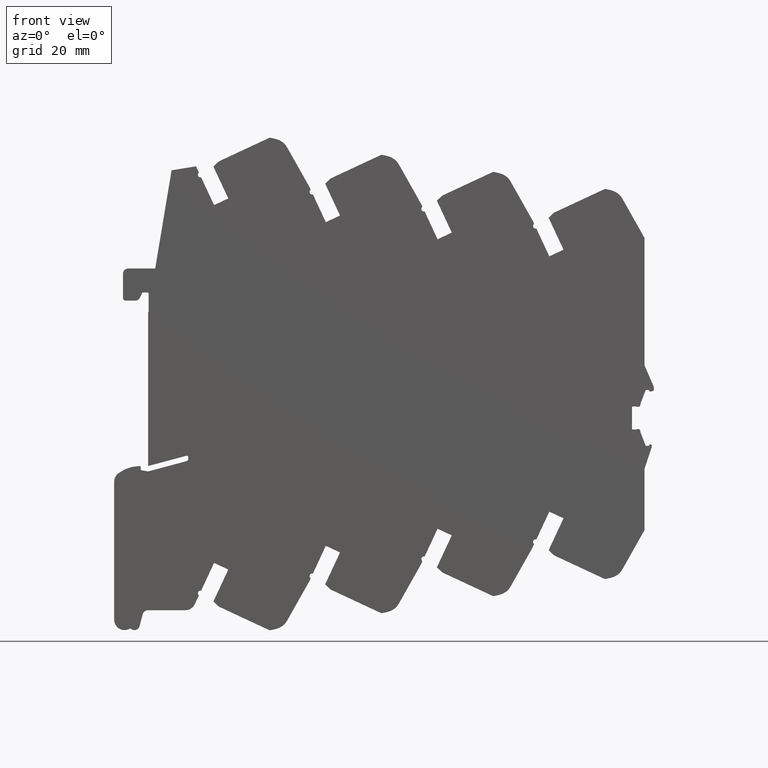
[diagram: clean part render]
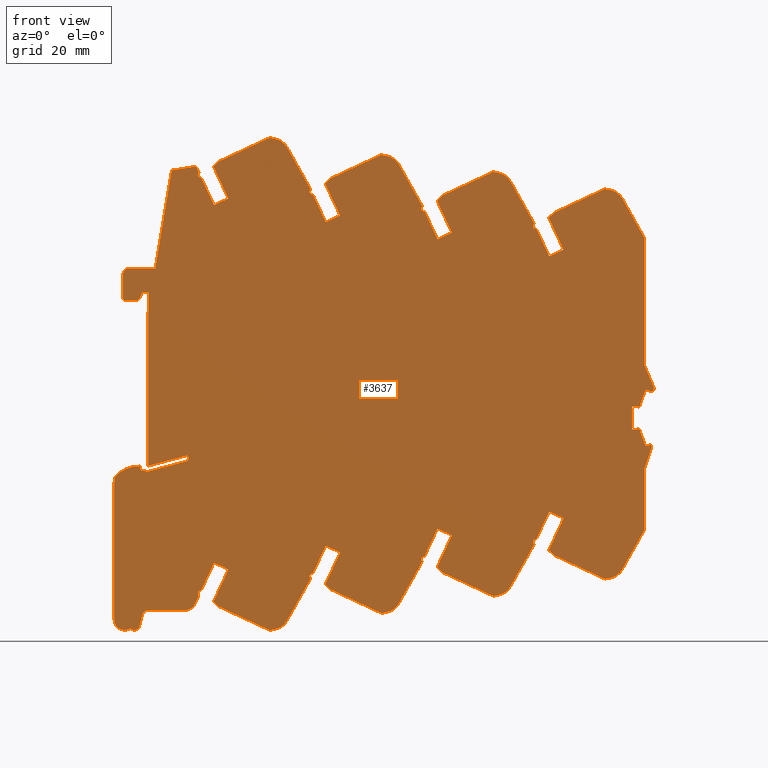
[diagram: same view with one face highlighted and labeled with its STEP entity id]
A machine part, front view. The second image highlights one B-rep face of the part: STEP entity #3637.
In plain terms, the highlighted planar face has unit normal (0, 1, 0).
Its self-contained STEP definition (entity closure, byte-faithful):
#4 = CARTESIAN_POINT ( 'NONE',  ( -3.000000000000000000, -10.88030717555839999, 51.85000000000001563 ) ) ;
#11 = EDGE_CURVE ( 'NONE', #4621, #3724, #1900, .T. ) ;
#14 = LINE ( 'NONE', #5998, #764 ) ;
#17 = VECTOR ( 'NONE', #5312, 1000.000000000000114 ) ;
#26 = EDGE_CURVE ( 'NONE', #5767, #2373, #5712, .T. ) ;
#28 = VECTOR ( 'NONE', #7420, 1000.000000000000000 ) ;
#31 = VERTEX_POINT ( 'NONE', #1053 ) ;
#37 = CARTESIAN_POINT ( 'NONE',  ( -3.000000000000000000, -31.82255900000000182, 33.45449300000000648 ) ) ;
#43 = AXIS2_PLACEMENT_3D ( 'NONE', #6866, #1428, #4115 ) ;
#48 = VERTEX_POINT ( 'NONE', #3698 ) ;
#50 = ORIENTED_EDGE ( 'NONE', *, *, #7279, .F. ) ;
#54 = VECTOR ( 'NONE', #2297, 1000.000000000000114 ) ;
#56 = VERTEX_POINT ( 'NONE', #4452 ) ;
#69 = VERTEX_POINT ( 'NONE', #8340 ) ;
#77 = CARTESIAN_POINT ( 'NONE',  ( -3.000000000000000000, -3.325372999999999912, 49.24816848554560522 ) ) ;
#96 = EDGE_CURVE ( 'NONE', #3160, #8398, #5019, .T. ) ;
#104 = CARTESIAN_POINT ( 'NONE',  ( -3.000000000000000000, -0.1753730000000039979, 51.45000000000000284 ) ) ;
#109 = VECTOR ( 'NONE', #1365, 1000.000000000000000 ) ;
#119 = ORIENTED_EDGE ( 'NONE', *, *, #5068, .F. ) ;
#121 = LINE ( 'NONE', #4175, #7038 ) ;
#125 = DIRECTION ( 'NONE',  ( 0.000000000000000000, 1.000000000000000000, 0.000000000000000000 ) ) ;
#139 = VERTEX_POINT ( 'NONE', #1007 ) ;
#143 = DIRECTION ( 'NONE',  ( 1.000000000000000000, 0.000000000000000000, 0.000000000000000000 ) ) ;
#144 = VECTOR ( 'NONE', #1300, 1000.000000000000114 ) ;
#154 = CARTESIAN_POINT ( 'NONE',  ( -3.000000000000000000, 23.07499999999999929, -42.88857899999998580 ) ) ;
#159 = DIRECTION ( 'NONE',  ( 0.000000000000000000, 0.6849489210215078394, -0.7285910894263476489 ) ) ;
#161 = CIRCLE ( 'NONE', #7034, 0.2000000000000005107 ) ;
#166 = CIRCLE ( 'NONE', #6902, 6.700000000000001066 ) ;
#167 = VERTEX_POINT ( 'NONE', #2462 ) ;
#168 = VERTEX_POINT ( 'NONE', #4486 ) ;
#179 = AXIS2_PLACEMENT_3D ( 'NONE', #1249, #3936, #7363 ) ;
#188 = EDGE_CURVE ( 'NONE', #5536, #8517, #474, .T. ) ;
#191 = ORIENTED_EDGE ( 'NONE', *, *, #6111, .F. ) ;
#201 = ORIENTED_EDGE ( 'NONE', *, *, #1286, .F. ) ;
#205 = DIRECTION ( 'NONE',  ( 0.000000000000000000, -0.9659258503000801577, -0.2588189554921880853 ) ) ;
#206 = LINE ( 'NONE', #4391, #6762 ) ;
#208 = CARTESIAN_POINT ( 'NONE',  ( -3.000000000000000000, -46.02597487866540149, -47.64261813837310200 ) ) ;
#218 = AXIS2_PLACEMENT_3D ( 'NONE', #6858, #5061, #7072 ) ;
#225 = DIRECTION ( 'NONE',  ( 0.000000000000000000, 1.000000000000000000, 0.000000000000000000 ) ) ;
#235 = VERTEX_POINT ( 'NONE', #8594 ) ;
#249 = EDGE_CURVE ( 'NONE', #56, #31, #4611, .T. ) ;
#259 = CARTESIAN_POINT ( 'NONE',  ( -3.000000000000000000, -37.75974242191490049, 25.13856632573421024 ) ) ;
#262 = CARTESIAN_POINT ( 'NONE',  ( -3.000000000000000000, -15.76027599999999929, -44.24999999999999289 ) ) ;
#270 = CARTESIAN_POINT ( 'NONE',  ( -3.000000000000000000, 39.70974242191489623, 25.13856632573421024 ) ) ;
#290 = CARTESIAN_POINT ( 'NONE',  ( -3.000000000000000000, 42.59592999999999563, -31.74999999999998579 ) ) ;
#294 = ORIENTED_EDGE ( 'NONE', *, *, #5649, .F. ) ;
#302 = DIRECTION ( 'NONE',  ( 0.000000000000000000, -0.9063077888657270487, -0.4226182578182309801 ) ) ;
#324 = DIRECTION ( 'NONE',  ( 0.000000000000000000, 0.4226182389767559333, 0.9063077976516507039 ) ) ;
#329 = VECTOR ( 'NONE', #2745, 1000.000000000000000 ) ;
#345 = VERTEX_POINT ( 'NONE', #8208 ) ;
#346 = DIRECTION ( 'NONE',  ( 0.000000000000000000, 0.4226182966199911184, -0.9063077707721682863 ) ) ;
#349 = CIRCLE ( 'NONE', #3726, 0.2000000000000310141 ) ;
#359 = DIRECTION ( 'NONE',  ( 0.000000000000000000, 1.000000000000000000, 0.000000000000000000 ) ) ;
#367 = LINE ( 'NONE', #5079, #8234 ) ;
#380 = CARTESIAN_POINT ( 'NONE',  ( -3.000000000000000000, -44.29974242191489964, -17.63143367426578934 ) ) ;
#384 = CIRCLE ( 'NONE', #945, 0.1999999999999987899 ) ;
#398 = LINE ( 'NONE', #2999, #1216 ) ;
#403 = EDGE_CURVE ( 'NONE', #8356, #2664, #5743, .T. ) ;
#406 = CARTESIAN_POINT ( 'NONE',  ( -3.000000000000000000, 47.87751836926140214, -19.83268868453399136 ) ) ;
#410 = CARTESIAN_POINT ( 'NONE',  ( -3.000000000000000000, 40.31255999999999773, -9.315506999999993099 ) ) ;
#430 = DIRECTION ( 'NONE',  ( 0.000000000000000000, -0.2141236708556889523, -0.9768065589354346656 ) ) ;
#435 = VECTOR ( 'NONE', #4033, 1000.000000000000000 ) ;
#452 = DIRECTION ( 'NONE',  ( 0.000000000000000000, 1.000000000000000000, 0.000000000000000000 ) ) ;
#455 = VECTOR ( 'NONE', #6131, 1000.000000000000114 ) ;
#458 = VERTEX_POINT ( 'NONE', #6935 ) ;
#461 = LINE ( 'NONE', #5957, #1546 ) ;
#464 = EDGE_CURVE ( 'NONE', #8664, #8231, #3556, .T. ) ;
#466 = AXIS2_PLACEMENT_3D ( 'NONE', #2000, #8007, #4027 ) ;
#474 = LINE ( 'NONE', #5146, #2889 ) ;
#476 = ORIENTED_EDGE ( 'NONE', *, *, #4904, .F. ) ;
#481 = CARTESIAN_POINT ( 'NONE',  ( -3.000000000000000000, -45.38381899589860069, -45.88407399890103022 ) ) ;
#490 = ORIENTED_EDGE ( 'NONE', *, *, #5223, .F. ) ;
#493 = VECTOR ( 'NONE', #8571, 1000.000000000000114 ) ;
#497 = DIRECTION ( 'NONE',  ( 1.000000000000000000, 0.000000000000000000, 0.000000000000000000 ) ) ;
#511 = VERTEX_POINT ( 'NONE', #8373 ) ;
#521 = AXIS2_PLACEMENT_3D ( 'NONE', #1979, #1456, #7517 ) ;
#532 = VERTEX_POINT ( 'NONE', #8581 ) ;
#543 = LINE ( 'NONE', #5342, #1861 ) ;
#545 = LINE ( 'NONE', #4599, #1120 ) ;
#547 = LINE ( 'NONE', #3940, #5976 ) ;
#551 = ORIENTED_EDGE ( 'NONE', *, *, #6493, .F. ) ;
#568 = ORIENTED_EDGE ( 'NONE', *, *, #2237, .F. ) ;
#569 = ORIENTED_EDGE ( 'NONE', *, *, #2375, .T. ) ;
#572 = AXIS2_PLACEMENT_3D ( 'NONE', #3031, #3119, #5795 ) ;
#577 = ORIENTED_EDGE ( 'NONE', *, *, #1936, .F. ) ;
#582 = ORIENTED_EDGE ( 'NONE', *, *, #7848, .F. ) ;
#590 = DIRECTION ( 'NONE',  ( 0.000000000000000000, 0.9063077943610161613, -0.4226182460335450308 ) ) ;
#599 = ORIENTED_EDGE ( 'NONE', *, *, #7937, .T. ) ;
#602 = DIRECTION ( 'NONE',  ( 0.000000000000000000, -0.2588190646725709310, -0.9659258210452889015 ) ) ;
#603 = ORIENTED_EDGE ( 'NONE', *, *, #2878, .F. ) ;
#607 = EDGE_CURVE ( 'NONE', #2664, #4605, #547, .T. ) ;
#611 = EDGE_CURVE ( 'NONE', #8061, #7248, #1633, .T. ) ;
#622 = DIRECTION ( 'NONE',  ( 1.000000000000000000, 0.000000000000000000, 0.000000000000000000 ) ) ;
#630 = CARTESIAN_POINT ( 'NONE',  ( -3.000000000000000000, -10.87537300000000151, 51.12469600000000725 ) ) ;
#634 = ORIENTED_EDGE ( 'NONE', *, *, #1422, .T. ) ;
#644 = DIRECTION ( 'NONE',  ( 0.000000000000000000, -0.9063081429139643319, -0.4226174985584971178 ) ) ;
#648 = DIRECTION ( 'NONE',  ( 0.000000000000000000, -0.9335804211319133072, -0.3583679635223540605 ) ) ;
#650 = VERTEX_POINT ( 'NONE', #5175 ) ;
#652 = DIRECTION ( 'NONE',  ( 1.000000000000000000, 0.000000000000000000, 0.000000000000000000 ) ) ;
#670 = CARTESIAN_POINT ( 'NONE',  ( -3.000000000000000000, 37.74499999999999744, -12.83999999999999098 ) ) ;
#672 = DIRECTION ( 'NONE',  ( 1.000000000000000000, 0.000000000000000000, 0.000000000000000000 ) ) ;
#677 = CARTESIAN_POINT ( 'NONE',  ( -3.000000000000000000, -15.76027599999999929, -44.24999999999999289 ) ) ;
#679 = DIRECTION ( 'NONE',  ( 0.000000000000000000, 1.000000000000000000, 0.000000000000000000 ) ) ;
#686 = CARTESIAN_POINT ( 'NONE',  ( -3.000000000000000000, 33.77255999999999858, 33.45449300000000648 ) ) ;
#687 = EDGE_CURVE ( 'NONE', #1987, #7902, #4083, .T. ) ;
#700 = ORIENTED_EDGE ( 'NONE', *, *, #8027, .F. ) ;
#707 = DIRECTION ( 'NONE',  ( 1.000000000000000000, 0.000000000000000000, 0.000000000000000000 ) ) ;
#716 = CARTESIAN_POINT ( 'NONE',  ( -3.000000000000000000, -0.4710022288112210020, 51.87887992351871702 ) ) ;
#740 = VECTOR ( 'NONE', #6663, 1000.000000000000000 ) ;
#741 = DIRECTION ( 'NONE',  ( 1.000000000000000000, 0.000000000000000000, 0.000000000000000000 ) ) ;
#752 = AXIS2_PLACEMENT_3D ( 'NONE', #7572, #7490, #2217 ) ;
#756 = CARTESIAN_POINT ( 'NONE',  ( -3.000000000000000000, 0.4716932824673149560, 52.50952687886500314 ) ) ;
#764 = VECTOR ( 'NONE', #6084, 1000.000000000000000 ) ;
#777 = CARTESIAN_POINT ( 'NONE',  ( -3.000000000000000000, -45.92751672738229729, -19.83268575635068842 ) ) ;
#782 = DIRECTION ( 'NONE',  ( 0.000000000000000000, -0.9063077647842205931, -0.4226183094611852264 ) ) ;
#790 = ORIENTED_EDGE ( 'NONE', *, *, #5599, .F. ) ;
#800 = DIRECTION ( 'NONE',  ( 0.000000000000000000, -0.9062909551863408408, 0.4226543558836578507 ) ) ;
#806 = AXIS2_PLACEMENT_3D ( 'NONE', #1449, #741, #4093 ) ;
#817 = VERTEX_POINT ( 'NONE', #7576 ) ;
#818 = CARTESIAN_POINT ( 'NONE',  ( -3.000000000000000000, -10.97971900000000112, 52.15000000000000568 ) ) ;
#833 = ORIENTED_EDGE ( 'NONE', *, *, #5448, .T. ) ;
#845 = DIRECTION ( 'NONE',  ( 1.000000000000000000, 0.000000000000000000, 0.000000000000000000 ) ) ;
#856 = AXIS2_PLACEMENT_3D ( 'NONE', #1930, #4707, #7378 ) ;
#875 = DIRECTION ( 'NONE',  ( 0.000000000000000000, 0.4226182192191450526, 0.9063078068647751895 ) ) ;
#876 = CIRCLE ( 'NONE', #5514, 0.4000000000000461520 ) ;
#884 = DIRECTION ( 'NONE',  ( 1.000000000000000000, 0.000000000000000000, 0.000000000000000000 ) ) ;
#890 = EDGE_CURVE ( 'NONE', #4980, #5263, #8318, .T. ) ;
#903 = ORIENTED_EDGE ( 'NONE', *, *, #5600, .F. ) ;
#904 = DIRECTION ( 'NONE',  ( 1.000000000000000000, 0.000000000000000000, 0.000000000000000000 ) ) ;
#911 = DIRECTION ( 'NONE',  ( 0.000000000000000000, 1.000000000000000000, 0.000000000000000000 ) ) ;
#919 = VECTOR ( 'NONE', #302, 1000.000000000000000 ) ;
#926 = EDGE_CURVE ( 'NONE', #168, #1453, #1910, .T. ) ;
#935 = VECTOR ( 'NONE', #8302, 1000.000000000000114 ) ;
#936 = CIRCLE ( 'NONE', #1787, 1.000000000000000888 ) ;
#937 = EDGE_CURVE ( 'NONE', #4605, #48, #7091, .T. ) ;
#939 = ORIENTED_EDGE ( 'NONE', *, *, #6375, .T. ) ;
#945 = AXIS2_PLACEMENT_3D ( 'NONE', #208, #4841, #6184 ) ;
#949 = VERTEX_POINT ( 'NONE', #2566 ) ;
#951 = CARTESIAN_POINT ( 'NONE',  ( -3.000000000000000000, 14.72499999999999964, -44.24999999999999289 ) ) ;
#958 = CARTESIAN_POINT ( 'NONE',  ( -3.000000000000000000, 28.67623000000000033, 11.15107600000001042 ) ) ;
#963 = VERTEX_POINT ( 'NONE', #3096 ) ;
#976 = CARTESIAN_POINT ( 'NONE',  ( -3.000000000000000000, 30.72153209865419754, 30.05750995399680292 ) ) ;
#977 = CARTESIAN_POINT ( 'NONE',  ( -3.000000000000000000, -17.72635142724780266, -48.75000000000007105 ) ) ;
#981 = CARTESIAN_POINT ( 'NONE',  ( -3.000000000000000000, -10.87537300000000151, 51.45000000000000284 ) ) ;
#983 = DIRECTION ( 'NONE',  ( 1.000000000000000000, 0.000000000000000000, 0.000000000000000000 ) ) ;
#994 = AXIS2_PLACEMENT_3D ( 'NONE', #1404, #7460, #6226 ) ;
#1000 = EDGE_CURVE ( 'NONE', #8044, #7029, #3765, .T. ) ;
#1007 = CARTESIAN_POINT ( 'NONE',  ( -3.000000000000000000, 31.61344564292459935, 29.64160416650739904 ) ) ;
#1011 = VERTEX_POINT ( 'NONE', #1029 ) ;
#1016 = VECTOR ( 'NONE', #8611, 1000.000000000000114 ) ;
#1028 = DIRECTION ( 'NONE',  ( 0.000000000000000000, 0.9063077943610161613, 0.4226182460335450308 ) ) ;
#1029 = CARTESIAN_POINT ( 'NONE',  ( -3.000000000000000000, -36.30747228031760443, 43.07241960114301804 ) ) ;
#1041 = CARTESIAN_POINT ( 'NONE',  ( -3.000000000000000000, -14.92500000000000071, -45.64999999999999147 ) ) ;
#1048 = ORIENTED_EDGE ( 'NONE', *, *, #3435, .F. ) ;
#1053 = CARTESIAN_POINT ( 'NONE',  ( -3.000000000000000000, -2.963999000000000272, 49.97000000000000597 ) ) ;
#1060 = CARTESIAN_POINT ( 'NONE',  ( -3.000000000000000000, -45.92751672738229729, -19.83268575635068842 ) ) ;
#1075 = VECTOR ( 'NONE', #4714, 1000.000000000000227 ) ;
#1086 = EDGE_CURVE ( 'NONE', #3724, #5953, #7444, .T. ) ;
#1092 = CARTESIAN_POINT ( 'NONE',  ( -3.000000000000000000, 38.25747229475460642, 43.07241963210341851 ) ) ;
#1108 = VERTEX_POINT ( 'NONE', #716 ) ;
#1118 = DIRECTION ( 'NONE',  ( 0.000000000000000000, 0.6849492895505407963, 0.7285907429718068151 ) ) ;
#1120 = VECTOR ( 'NONE', #6487, 1000.000000000000000 ) ;
#1126 = ORIENTED_EDGE ( 'NONE', *, *, #8637, .F. ) ;
#1139 = VERTEX_POINT ( 'NONE', #4630 ) ;
#1141 = DIRECTION ( 'NONE',  ( 0.000000000000000000, -0.2079100034520110496, -0.9781479593929461869 ) ) ;
#1144 = VERTEX_POINT ( 'NONE', #3408 ) ;
#1155 = EDGE_CURVE ( 'NONE', #4252, #949, #2652, .T. ) ;
#1160 = VERTEX_POINT ( 'NONE', #630 ) ;
#1161 = CARTESIAN_POINT ( 'NONE',  ( -3.000000000000000000, -15.33446299999999951, -45.64999999999999147 ) ) ;
#1164 = AXIS2_PLACEMENT_3D ( 'NONE', #4937, #2253, #5069 ) ;
#1167 = VECTOR ( 'NONE', #1141, 1000.000000000000000 ) ;
#1179 = VECTOR ( 'NONE', #4940, 1000.000000000000000 ) ;
#1186 = EDGE_CURVE ( 'NONE', #8664, #2052, #6088, .T. ) ;
#1189 = EDGE_CURVE ( 'NONE', #7196, #2052, #6697, .T. ) ;
#1191 = VERTEX_POINT ( 'NONE', #5384 ) ;
#1197 = DIRECTION ( 'NONE',  ( 1.000000000000000000, 0.000000000000000000, 0.000000000000000000 ) ) ;
#1205 = VERTEX_POINT ( 'NONE', #3531 ) ;
#1215 = ORIENTED_EDGE ( 'NONE', *, *, #464, .F. ) ;
#1216 = VECTOR ( 'NONE', #5674, 999.9999999999998863 ) ;
#1227 = VERTEX_POINT ( 'NONE', #5633 ) ;
#1238 = ORIENTED_EDGE ( 'NONE', *, *, #11, .F. ) ;
#1246 = ORIENTED_EDGE ( 'NONE', *, *, #1952, .F. ) ;
#1248 = ORIENTED_EDGE ( 'NONE', *, *, #8010, .F. ) ;
#1249 = CARTESIAN_POINT ( 'NONE',  ( -3.000000000000000000, 31.20500000000000185, 29.93000000000000682 ) ) ;
#1253 = CARTESIAN_POINT ( 'NONE',  ( -3.000000000000000000, -14.92500000000000071, -45.64999999999999147 ) ) ;
#1255 = EDGE_CURVE ( 'NONE', #5001, #8555, #2722, .T. ) ;
#1256 = LINE ( 'NONE', #4644, #8470 ) ;
#1265 = VECTOR ( 'NONE', #590, 1000.000000000000114 ) ;
#1266 = CARTESIAN_POINT ( 'NONE',  ( -3.000000000000000000, -2.825372999999999912, 49.97000000000000597 ) ) ;
#1272 = DIRECTION ( 'NONE',  ( 1.000000000000000000, 0.000000000000000000, 0.000000000000000000 ) ) ;
#1274 = VECTOR ( 'NONE', #7941, 1000.000000000000227 ) ;
#1286 = EDGE_CURVE ( 'NONE', #2845, #7823, #6827, .T. ) ;
#1288 = VERTEX_POINT ( 'NONE', #4938 ) ;
#1300 = DIRECTION ( 'NONE',  ( 0.000000000000000000, -0.2141227343362739066, 0.9768067642273764450 ) ) ;
#1301 = CARTESIAN_POINT ( 'NONE',  ( -3.000000000000000000, -44.12500000000000000, -50.74999999999999289 ) ) ;
#1305 = VECTOR ( 'NONE', #1665, 1000.000000000000000 ) ;
#1307 = CARTESIAN_POINT ( 'NONE',  ( -3.000000000000000000, 18.35952373132679938, -45.40384812528407821 ) ) ;
#1317 = DIRECTION ( 'NONE',  ( 0.000000000000000000, -0.9063077764700133709, -0.4226182844009241379 ) ) ;
#1321 = EDGE_CURVE ( 'NONE', #532, #8240, #4199, .T. ) ;
#1328 = ORIENTED_EDGE ( 'NONE', *, *, #2972, .F. ) ;
#1339 = CARTESIAN_POINT ( 'NONE',  ( -3.000000000000000000, -42.65751672738230127, 1.552314243649308256 ) ) ;
#1342 = EDGE_CURVE ( 'NONE', #8398, #3523, #7352, .T. ) ;
#1347 = ORIENTED_EDGE ( 'NONE', *, *, #7715, .F. ) ;
#1352 = LINE ( 'NONE', #6705, #435 ) ;
#1357 = VECTOR ( 'NONE', #7219, 1000.000000000000114 ) ;
#1359 = ORIENTED_EDGE ( 'NONE', *, *, #611, .F. ) ;
#1365 = DIRECTION ( 'NONE',  ( 0.000000000000000000, -1.000000000000000000, 0.000000000000000000 ) ) ;
#1381 = EDGE_CURVE ( 'NONE', #8014, #5164, #1812, .T. ) ;
#1382 = ORIENTED_EDGE ( 'NONE', *, *, #2594, .T. ) ;
#1389 = DIRECTION ( 'NONE',  ( 1.000000000000000000, 0.000000000000000000, 0.000000000000000000 ) ) ;
#1390 = ORIENTED_EDGE ( 'NONE', *, *, #8396, .F. ) ;
#1404 = CARTESIAN_POINT ( 'NONE',  ( -3.000000000000000000, -40.32500000000000284, -37.11722635186902153 ) ) ;
#1417 = EDGE_CURVE ( 'NONE', #3523, #1108, #3837, .T. ) ;
#1422 = EDGE_CURVE ( 'NONE', #8134, #1978, #7345, .T. ) ;
#1423 = ORIENTED_EDGE ( 'NONE', *, *, #3405, .F. ) ;
#1428 = DIRECTION ( 'NONE',  ( 1.000000000000000000, 0.000000000000000000, 0.000000000000000000 ) ) ;
#1436 = LINE ( 'NONE', #4123, #4588 ) ;
#1441 = VECTOR ( 'NONE', #6847, 1000.000000000000000 ) ;
#1442 = ORIENTED_EDGE ( 'NONE', *, *, #3796, .T. ) ;
#1445 = DIRECTION ( 'NONE',  ( 0.000000000000000000, 0.9063077943610167164, 0.4226182460335438096 ) ) ;
#1446 = LINE ( 'NONE', #2021, #1441 ) ;
#1449 = CARTESIAN_POINT ( 'NONE',  ( -3.000000000000000000, -36.11521471387490578, 22.22000013366800530 ) ) ;
#1453 = VERTEX_POINT ( 'NONE', #7165 ) ;
#1456 = DIRECTION ( 'NONE',  ( 1.000000000000000000, 0.000000000000000000, 0.000000000000000000 ) ) ;
#1458 = CARTESIAN_POINT ( 'NONE',  ( -3.000000000000000000, -42.65751672738230127, 1.552314243649308256 ) ) ;
#1464 = CARTESIAN_POINT ( 'NONE',  ( -3.000000000000000000, -13.31340399999999846, -36.54999999999999005 ) ) ;
#1466 = CIRCLE ( 'NONE', #4420, 3.349999999997459010 ) ;
#1481 = CARTESIAN_POINT ( 'NONE',  ( -3.000000000000000000, -8.086747000000000796, 49.97000000000000597 ) ) ;
#1494 = VERTEX_POINT ( 'NONE', #7994 ) ;
#1511 = VERTEX_POINT ( 'NONE', #8692 ) ;
#1525 = LINE ( 'NONE', #4213, #6327 ) ;
#1532 = ORIENTED_EDGE ( 'NONE', *, *, #1086, .F. ) ;
#1533 = ORIENTED_EDGE ( 'NONE', *, *, #7783, .F. ) ;
#1538 = VERTEX_POINT ( 'NONE', #7392 ) ;
#1544 = LINE ( 'NONE', #4812, #4403 ) ;
#1545 = CARTESIAN_POINT ( 'NONE',  ( -3.000000000000000000, 34.47500000000000142, 8.545000000000010587 ) ) ;
#1546 = VECTOR ( 'NONE', #1961, 1000.000000000000114 ) ;
#1555 = LINE ( 'NONE', #3715, #7600 ) ;
#1562 = CIRCLE ( 'NONE', #572, 3.349999999997309796 ) ;
#1566 = CARTESIAN_POINT ( 'NONE',  ( -3.000000000000000000, -8.086746956164338584, 49.51862605857139954 ) ) ;
#1573 = EDGE_CURVE ( 'NONE', #48, #167, #7208, .T. ) ;
#1583 = CIRCLE ( 'NONE', #5227, 0.4999999999999935052 ) ;
#1586 = CARTESIAN_POINT ( 'NONE',  ( -3.000000000000000000, 44.60751836926140612, 1.552311315466008201 ) ) ;
#1617 = DIRECTION ( 'NONE',  ( 0.000000000000000000, 1.000000000000000000, 0.000000000000000000 ) ) ;
#1624 = DIRECTION ( 'NONE',  ( 1.000000000000000000, 0.000000000000000000, 0.000000000000000000 ) ) ;
#1630 = EDGE_CURVE ( 'NONE', #2646, #5044, #1466, .T. ) ;
#1633 = CIRCLE ( 'NONE', #5144, 0.2000000000000074496 ) ;
#1636 = LINE ( 'NONE', #2245, #6206 ) ;
#1639 = ORIENTED_EDGE ( 'NONE', *, *, #5707, .T. ) ;
#1657 = LINE ( 'NONE', #6397, #7078 ) ;
#1664 = DIRECTION ( 'NONE',  ( 1.000000000000000000, 0.000000000000000000, 0.000000000000000000 ) ) ;
#1665 = DIRECTION ( 'NONE',  ( 0.000000000000000000, 0.6849492895505460144, 0.7285907429718019301 ) ) ;
#1674 = DIRECTION ( 'NONE',  ( 0.000000000000000000, 1.000000000000000000, 0.000000000000000000 ) ) ;
#1680 = CARTESIAN_POINT ( 'NONE',  ( -3.000000000000000000, -34.53408499999999748, -28.89999999999998792 ) ) ;
#1696 = DIRECTION ( 'NONE',  ( 0.000000000000000000, -0.2079352480670889902, 0.9781425931893970027 ) ) ;
#1705 = CARTESIAN_POINT ( 'NONE',  ( -3.000000000000000000, -31.26408499999999790, -7.514999999999993463 ) ) ;
#1718 = EDGE_CURVE ( 'NONE', #7824, #1914, #5659, .T. ) ;
#1725 = CARTESIAN_POINT ( 'NONE',  ( -3.000000000000000000, 38.28567196690119800, 43.32711615099361069 ) ) ;
#1733 = ORIENTED_EDGE ( 'NONE', *, *, #4900, .F. ) ;
#1738 = FACE_OUTER_BOUND ( 'NONE', #8431, .T. ) ;
#1747 = CARTESIAN_POINT ( 'NONE',  ( -3.000000000000000000, 17.42500000000000071, -49.04999999999999005 ) ) ;
#1755 = ORIENTED_EDGE ( 'NONE', *, *, #5881, .F. ) ;
#1756 = CIRCLE ( 'NONE', #2308, 2.000000000000001776 ) ;
#1758 = CARTESIAN_POINT ( 'NONE',  ( -3.000000000000000000, 47.70494925318419632, -20.91353290612739002 ) ) ;
#1759 = DIRECTION ( 'NONE',  ( 0.000000000000000000, -0.2141236708556810142, -0.9768065589354362199 ) ) ;
#1760 = ORIENTED_EDGE ( 'NONE', *, *, #8644, .F. ) ;
#1762 = CARTESIAN_POINT ( 'NONE',  ( -3.000000000000000000, -36.11751672738229502, 44.32231424364941574 ) ) ;
#1773 = VERTEX_POINT ( 'NONE', #958 ) ;
#1778 = ORIENTED_EDGE ( 'NONE', *, *, #4873, .F. ) ;
#1779 = CARTESIAN_POINT ( 'NONE',  ( -3.000000000000000000, 14.72499999999999964, -44.24999999999999289 ) ) ;
#1781 = VECTOR ( 'NONE', #800, 1000.000000000000227 ) ;
#1787 = AXIS2_PLACEMENT_3D ( 'NONE', #4543, #1197, #3884 ) ;
#1812 = LINE ( 'NONE', #3215, #8596 ) ;
#1833 = DIRECTION ( 'NONE',  ( 1.000000000000000000, 0.000000000000000000, 0.000000000000000000 ) ) ;
#1839 = EDGE_CURVE ( 'NONE', #8621, #2349, #1256, .T. ) ;
#1859 = DIRECTION ( 'NONE',  ( 0.000000000000000000, 0.000000000000000000, 1.000000000000000000 ) ) ;
#1861 = VECTOR ( 'NONE', #5905, 1000.000000000000114 ) ;
#1865 = CARTESIAN_POINT ( 'NONE',  ( -3.000000000000000000, -29.66344564292460362, 29.64160416650739904 ) ) ;
#1879 = ORIENTED_EDGE ( 'NONE', *, *, #6245, .F. ) ;
#1882 = ORIENTED_EDGE ( 'NONE', *, *, #5725, .F. ) ;
#1893 = ORIENTED_EDGE ( 'NONE', *, *, #687, .F. ) ;
#1900 = CIRCLE ( 'NONE', #218, 0.4000000000001086020 ) ;
#1904 = CARTESIAN_POINT ( 'NONE',  ( -3.000000000000000000, 23.07499999999999929, -48.04999999999999005 ) ) ;
#1907 = ORIENTED_EDGE ( 'NONE', *, *, #8251, .F. ) ;
#1910 = LINE ( 'NONE', #5166, #1357 ) ;
#1912 = ORIENTED_EDGE ( 'NONE', *, *, #2005, .T. ) ;
#1913 = VECTOR ( 'NONE', #7921, 1000.000000000000114 ) ;
#1914 = VERTEX_POINT ( 'NONE', #5523 ) ;
#1916 = CARTESIAN_POINT ( 'NONE',  ( -3.000000000000000000, 33.21408499999999719, -7.514999999999993463 ) ) ;
#1919 = LINE ( 'NONE', #7885, #2985 ) ;
#1923 = AXIS2_PLACEMENT_3D ( 'NONE', #3081, #7695, #7032 ) ;
#1925 = VECTOR ( 'NONE', #3075, 1000.000000000000227 ) ;
#1927 = CARTESIAN_POINT ( 'NONE',  ( -3.000000000000000000, -7.725372999999999379, 48.45000000000001705 ) ) ;
#1930 = CARTESIAN_POINT ( 'NONE',  ( -3.000000000000000000, 38.06521585479770664, 22.21999949079109982 ) ) ;
#1933 = CIRCLE ( 'NONE', #6283, 0.4999999999992150723 ) ;
#1936 = EDGE_CURVE ( 'NONE', #8420, #3044, #2145, .T. ) ;
#1941 = CARTESIAN_POINT ( 'NONE',  ( -3.000000000000000000, 4.574627000000000443, 50.75000000000000711 ) ) ;
#1952 = EDGE_CURVE ( 'NONE', #2995, #1144, #8199, .T. ) ;
#1954 = DIRECTION ( 'NONE',  ( 0.000000000000000000, -0.2141227343362779589, 0.9768067642273756679 ) ) ;
#1957 = ORIENTED_EDGE ( 'NONE', *, *, #5549, .F. ) ;
#1961 = DIRECTION ( 'NONE',  ( 0.000000000000000000, -0.8712138348212500327, 0.4909037115525320960 ) ) ;
#1967 = VERTEX_POINT ( 'NONE', #777 ) ;
#1976 = VERTEX_POINT ( 'NONE', #77 ) ;
#1978 = VERTEX_POINT ( 'NONE', #6009 ) ;
#1979 = CARTESIAN_POINT ( 'NONE',  ( -3.000000000000000000, -39.06850000000000023, -34.21656699999999063 ) ) ;
#1987 = VERTEX_POINT ( 'NONE', #4746 ) ;
#1990 = CARTESIAN_POINT ( 'NONE',  ( -3.000000000000000000, -12.76298094684420015, -36.92764580161988874 ) ) ;
#1993 = ORIENTED_EDGE ( 'NONE', *, *, #607, .F. ) ;
#1994 = CARTESIAN_POINT ( 'NONE',  ( -3.000000000000000000, 35.49058000000000135, 7.973492000000012681 ) ) ;
#2000 = CARTESIAN_POINT ( 'NONE',  ( -3.000000000000000000, -13.31340421478739877, -37.04999999999999005 ) ) ;
#2002 = VERTEX_POINT ( 'NONE', #5399 ) ;
#2004 = ORIENTED_EDGE ( 'NONE', *, *, #1381, .F. ) ;
#2005 = EDGE_CURVE ( 'NONE', #6066, #2349, #6802, .T. ) ;
#2021 = CARTESIAN_POINT ( 'NONE',  ( -3.000000000000000000, -14.72499999999999964, -44.24999999999999289 ) ) ;
#2035 = AXIS2_PLACEMENT_3D ( 'NONE', #4734, #1389, #4074 ) ;
#2039 = ORIENTED_EDGE ( 'NONE', *, *, #8651, .F. ) ;
#2047 = VECTOR ( 'NONE', #5371, 1000.000000000000000 ) ;
#2052 = VERTEX_POINT ( 'NONE', #7007 ) ;
#2057 = DIRECTION ( 'NONE',  ( 0.000000000000000000, 1.000000000000000000, 0.000000000000000000 ) ) ;
#2066 = LINE ( 'NONE', #6880, #2827 ) ;
#2088 = CARTESIAN_POINT ( 'NONE',  ( -3.000000000000000000, -10.74704661683320062, 50.93797985291601549 ) ) ;
#2089 = EDGE_CURVE ( 'NONE', #7248, #5498, #1657, .T. ) ;
#2102 = LINE ( 'NONE', #2709, #3266 ) ;
#2110 = ORIENTED_EDGE ( 'NONE', *, *, #5977, .F. ) ;
#2123 = ORIENTED_EDGE ( 'NONE', *, *, #1417, .F. ) ;
#2133 = CARTESIAN_POINT ( 'NONE',  ( -3.000000000000000000, -33.26623499999999467, -31.61891399999998953 ) ) ;
#2145 = LINE ( 'NONE', #1307, #2873 ) ;
#2178 = CIRCLE ( 'NONE', #5811, 0.1999999999999918510 ) ;
#2179 = ORIENTED_EDGE ( 'NONE', *, *, #1342, .F. ) ;
#2189 = ORIENTED_EDGE ( 'NONE', *, *, #3722, .F. ) ;
#2193 = LINE ( 'NONE', #6803, #3664 ) ;
#2206 = EDGE_CURVE ( 'NONE', #4301, #8250, #2877, .T. ) ;
#2211 = VECTOR ( 'NONE', #7651, 1000.000000000000114 ) ;
#2214 = CIRCLE ( 'NONE', #5294, 0.4000000000000392131 ) ;
#2217 = DIRECTION ( 'NONE',  ( 0.000000000000000000, 1.000000000000000000, 0.000000000000000000 ) ) ;
#2237 = EDGE_CURVE ( 'NONE', #5164, #3648, #3893, .T. ) ;
#2245 = CARTESIAN_POINT ( 'NONE',  ( -3.000000000000000000, 37.04256000000000171, 12.06949300000000669 ) ) ;
#2247 = EDGE_CURVE ( 'NONE', #8061, #7759, #2178, .T. ) ;
#2248 = VERTEX_POINT ( 'NONE', #2697 ) ;
#2253 = DIRECTION ( 'NONE',  ( 1.000000000000000000, 0.000000000000000000, 0.000000000000000000 ) ) ;
#2254 = CARTESIAN_POINT ( 'NONE',  ( -3.000000000000000000, 43.58256000000000085, -30.70050699999999111 ) ) ;
#2275 = DIRECTION ( 'NONE',  ( 0.000000000000000000, 1.000000000000000000, 0.000000000000000000 ) ) ;
#2294 = EDGE_CURVE ( 'NONE', #3757, #8231, #5255, .T. ) ;
#2297 = DIRECTION ( 'NONE',  ( 0.000000000000000000, 0.4226182192191442755, 0.9063078068647755225 ) ) ;
#2301 = ORIENTED_EDGE ( 'NONE', *, *, #4413, .F. ) ;
#2308 = AXIS2_PLACEMENT_3D ( 'NONE', #977, #7656, #2342 ) ;
#2310 = EDGE_CURVE ( 'NONE', #2248, #650, #14, .T. ) ;
#2317 = CARTESIAN_POINT ( 'NONE',  ( -3.000000000000000000, -31.82255900000000182, 33.45449300000000648 ) ) ;
#2318 = CARTESIAN_POINT ( 'NONE',  ( -3.000000000000000000, 48.09567196690120028, -20.82788384900638690 ) ) ;
#2324 = VERTEX_POINT ( 'NONE', #2133 ) ;
#2338 = CARTESIAN_POINT ( 'NONE',  ( -3.000000000000000000, -8.225372999999999379, 49.97000000000000597 ) ) ;
#2342 = DIRECTION ( 'NONE',  ( 0.000000000000000000, 1.000000000000000000, 0.000000000000000000 ) ) ;
#2343 = CIRCLE ( 'NONE', #6698, 0.2999999999999791167 ) ;
#2349 = VERTEX_POINT ( 'NONE', #4158 ) ;
#2363 = DIRECTION ( 'NONE',  ( 0.000000000000000000, -0.2141227343362750724, 0.9768067642273762230 ) ) ;
#2372 = CARTESIAN_POINT ( 'NONE',  ( -3.000000000000000000, -29.99622999999999706, -10.23392399999999114 ) ) ;
#2373 = VERTEX_POINT ( 'NONE', #4028 ) ;
#2375 = EDGE_CURVE ( 'NONE', #8420, #7916, #5403, .T. ) ;
#2379 = DIRECTION ( 'NONE',  ( 0.000000000000000000, 1.000000000000000000, 0.000000000000000000 ) ) ;
#2381 = CARTESIAN_POINT ( 'NONE',  ( -3.000000000000000000, -0.08541682451658638708, 52.25000000000120792 ) ) ;
#2387 = DIRECTION ( 'NONE',  ( 0.000000000000000000, 0.9063077943610161613, -0.4226182460335450308 ) ) ;
#2391 = EDGE_CURVE ( 'NONE', #8118, #1987, #3854, .T. ) ;
#2392 = CARTESIAN_POINT ( 'NONE',  ( -3.000000000000000000, -32.52499999999999858, 8.545000000000010587 ) ) ;
#2401 = LINE ( 'NONE', #1705, #5720 ) ;
#2402 = VECTOR ( 'NONE', #1759, 1000.000000000000227 ) ;
#2405 = ORIENTED_EDGE ( 'NONE', *, *, #4698, .F. ) ;
#2407 = CIRCLE ( 'NONE', #8562, 0.4000000000000114575 ) ;
#2410 = LINE ( 'NONE', #5104, #2402 ) ;
#2419 = EDGE_CURVE ( 'NONE', #7902, #168, #7969, .T. ) ;
#2423 = AXIS2_PLACEMENT_3D ( 'NONE', #6874, #845, #2057 ) ;
#2429 = EDGE_CURVE ( 'NONE', #3617, #7482, #1756, .T. ) ;
#2459 = VERTEX_POINT ( 'NONE', #270 ) ;
#2462 = CARTESIAN_POINT ( 'NONE',  ( -3.000000000000000000, 44.82567196690120426, 0.5571161509936097822 ) ) ;
#2468 = CARTESIAN_POINT ( 'NONE',  ( -3.000000000000000000, 35.21623499999999751, -31.61891399999998953 ) ) ;
#2475 = ORIENTED_EDGE ( 'NONE', *, *, #1573, .F. ) ;
#2490 = VECTOR ( 'NONE', #4142, 1000.000000000000227 ) ;
#2492 = CARTESIAN_POINT ( 'NONE',  ( -3.000000000000000000, -40.64592999999999989, -31.74999999999998579 ) ) ;
#2500 = VERTEX_POINT ( 'NONE', #7533 ) ;
#2507 = EDGE_CURVE ( 'NONE', #1160, #3861, #8211, .T. ) ;
#2511 = ORIENTED_EDGE ( 'NONE', *, *, #2294, .T. ) ;
#2513 = EDGE_CURVE ( 'NONE', #1227, #5547, #2550, .T. ) ;
#2522 = ORIENTED_EDGE ( 'NONE', *, *, #2206, .T. ) ;
#2538 = CARTESIAN_POINT ( 'NONE',  ( -3.000000000000000000, 46.24974242191490248, -17.63143367426578934 ) ) ;
#2541 = CARTESIAN_POINT ( 'NONE',  ( -3.000000000000000000, 28.95057999999999865, 50.74349200000001048 ) ) ;
#2550 = LINE ( 'NONE', #6067, #2047 ) ;
#2561 = CARTESIAN_POINT ( 'NONE',  ( -3.000000000000000000, -0.3251265267637930001, 51.64358536082911399 ) ) ;
#2563 = AXIS2_PLACEMENT_3D ( 'NONE', #4231, #6821, #225 ) ;
#2566 = CARTESIAN_POINT ( 'NONE',  ( -3.000000000000000000, 16.92500000000000071, -48.54999999999999005 ) ) ;
#2571 = CARTESIAN_POINT ( 'NONE',  ( -3.000000000000000000, -34.53408499999999748, -28.89999999999998792 ) ) ;
#2573 = LINE ( 'NONE', #7884, #2673 ) ;
#2578 = ORIENTED_EDGE ( 'NONE', *, *, #7504, .F. ) ;
#2585 = DIRECTION ( 'NONE',  ( 0.000000000000000000, -0.9063077888657267156, -0.4226182578182318683 ) ) ;
#2594 = EDGE_CURVE ( 'NONE', #3375, #4608, #349, .T. ) ;
#2603 = DIRECTION ( 'NONE',  ( 0.000000000000000000, 1.000000000000000000, 0.000000000000000000 ) ) ;
#2604 = VERTEX_POINT ( 'NONE', #3873 ) ;
#2605 = DIRECTION ( 'NONE',  ( 0.000000000000000000, -0.9063073489103398162, 0.4226192013043319484 ) ) ;
#2612 = EDGE_CURVE ( 'NONE', #3932, #8269, #3303, .T. ) ;
#2613 = DIRECTION ( 'NONE',  ( 1.000000000000000000, 0.000000000000000000, 0.000000000000000000 ) ) ;
#2614 = ORIENTED_EDGE ( 'NONE', *, *, #1000, .F. ) ;
#2616 = ORIENTED_EDGE ( 'NONE', *, *, #6798, .F. ) ;
#2631 = CARTESIAN_POINT ( 'NONE',  ( -3.000000000000000000, -39.57747228031760045, 21.68741960114301648 ) ) ;
#2635 = ORIENTED_EDGE ( 'NONE', *, *, #2429, .F. ) ;
#2641 = EDGE_CURVE ( 'NONE', #6687, #1288, #4663, .T. ) ;
#2646 = VERTEX_POINT ( 'NONE', #1586 ) ;
#2652 = LINE ( 'NONE', #8106, #329 ) ;
#2655 = VERTEX_POINT ( 'NONE', #4926 ) ;
#2657 = CARTESIAN_POINT ( 'NONE',  ( -3.000000000000000000, 18.35952373132679938, -45.40384812528407821 ) ) ;
#2660 = LINE ( 'NONE', #3811, #6592 ) ;
#2664 = VERTEX_POINT ( 'NONE', #5540 ) ;
#2672 = CARTESIAN_POINT ( 'NONE',  ( -3.000000000000000000, -23.45623000000000147, 32.53607600000000133 ) ) ;
#2673 = VECTOR ( 'NONE', #7365, 1000.000000000000227 ) ;
#2676 = VERTEX_POINT ( 'NONE', #1458 ) ;
#2678 = ORIENTED_EDGE ( 'NONE', *, *, #4656, .F. ) ;
#2693 = AXIS2_PLACEMENT_3D ( 'NONE', #1566, #904, #1617 ) ;
#2697 = CARTESIAN_POINT ( 'NONE',  ( -3.000000000000000000, 38.76058000000000447, -13.41150799999999244 ) ) ;
#2700 = VECTOR ( 'NONE', #2363, 1000.000000000000000 ) ;
#2709 = CARTESIAN_POINT ( 'NONE',  ( -3.000000000000000000, -7.625373000000000623, 48.35000000000000853 ) ) ;
#2711 = CIRCLE ( 'NONE', #8184, 3.349999999997383071 ) ;
#2714 = VERTEX_POINT ( 'NONE', #7561 ) ;
#2718 = CARTESIAN_POINT ( 'NONE',  ( -3.000000000000000000, 40.31255999999999773, -9.315506999999993099 ) ) ;
#2722 = CIRCLE ( 'NONE', #752, 0.2000000000000149991 ) ;
#2733 = ORIENTED_EDGE ( 'NONE', *, *, #6617, .F. ) ;
#2738 = VECTOR ( 'NONE', #6023, 1000.000000000000114 ) ;
#2745 = DIRECTION ( 'NONE',  ( 0.000000000000000000, 0.000000000000000000, -1.000000000000000000 ) ) ;
#2771 = VECTOR ( 'NONE', #7688, 1000.000000000000000 ) ;
#2778 = VECTOR ( 'NONE', #3115, 1000.000000000000000 ) ;
#2785 = CARTESIAN_POINT ( 'NONE',  ( -3.000000000000000000, -38.36255899999999741, -9.315506999999993099 ) ) ;
#2792 = DIRECTION ( 'NONE',  ( 0.000000000000000000, 1.000000000000000000, 0.000000000000000000 ) ) ;
#2796 = CARTESIAN_POINT ( 'NONE',  ( -3.000000000000000000, -0.3788611766936089698, 52.31237316871490606 ) ) ;
#2819 = ORIENTED_EDGE ( 'NONE', *, *, #4166, .F. ) ;
#2827 = VECTOR ( 'NONE', #1445, 1000.000000000000114 ) ;
#2834 = ORIENTED_EDGE ( 'NONE', *, *, #5757, .F. ) ;
#2845 = VERTEX_POINT ( 'NONE', #6371 ) ;
#2870 = LINE ( 'NONE', #4811, #1781 ) ;
#2873 = VECTOR ( 'NONE', #644, 1000.000000000000114 ) ;
#2877 = CIRCLE ( 'NONE', #3299, 0.1999999999999953204 ) ;
#2878 = EDGE_CURVE ( 'NONE', #2500, #3932, #5017, .T. ) ;
#2886 = EDGE_CURVE ( 'NONE', #1191, #5536, #1562, .T. ) ;
#2889 = VECTOR ( 'NONE', #430, 999.9999999999998863 ) ;
#2916 = DIRECTION ( 'NONE',  ( 0.000000000000000000, 0.000000000000000000, -1.000000000000000000 ) ) ;
#2924 = ORIENTED_EDGE ( 'NONE', *, *, #5544, .F. ) ;
#2936 = LINE ( 'NONE', #1041, #7035 ) ;
#2962 = CARTESIAN_POINT ( 'NONE',  ( -3.000000000000000000, -45.75494925318410111, -20.91353290612808991 ) ) ;
#2972 = EDGE_CURVE ( 'NONE', #5953, #2459, #3106, .T. ) ;
#2976 = CARTESIAN_POINT ( 'NONE',  ( -3.000000000000000000, -36.81058000000000163, -13.41150799999999244 ) ) ;
#2985 = VECTOR ( 'NONE', #6534, 1000.000000000000114 ) ;
#2995 = VERTEX_POINT ( 'NONE', #3337 ) ;
#2999 = CARTESIAN_POINT ( 'NONE',  ( -3.000000000000000000, -3.325372999999999912, 48.45000000000001705 ) ) ;
#3007 = ORIENTED_EDGE ( 'NONE', *, *, #1155, .F. ) ;
#3013 = DIRECTION ( 'NONE',  ( 0.000000000000000000, 0.4226182966199911184, -0.9063077707721682863 ) ) ;
#3018 = CARTESIAN_POINT ( 'NONE',  ( -3.000000000000000000, -13.05275900000000000, -36.54999999999999005 ) ) ;
#3022 = DIRECTION ( 'NONE',  ( 0.000000000000000000, -1.000000000000000000, 0.000000000000000000 ) ) ;
#3027 = VERTEX_POINT ( 'NONE', #2541 ) ;
#3031 = CARTESIAN_POINT ( 'NONE',  ( -3.000000000000000000, -32.84521471387499503, 43.60500013366809924 ) ) ;
#3042 = DIRECTION ( 'NONE',  ( 0.000000000000000000, -0.8712138348212496997, -0.4909037115525328732 ) ) ;
#3043 = DIRECTION ( 'NONE',  ( 0.000000000000000000, 1.000000000000000000, 0.000000000000000000 ) ) ;
#3044 = VERTEX_POINT ( 'NONE', #3244 ) ;
#3045 = AXIS2_PLACEMENT_3D ( 'NONE', #2962, #983, #5642 ) ;
#3056 = LINE ( 'NONE', #6347, #6362 ) ;
#3067 = EDGE_CURVE ( 'NONE', #8111, #458, #8635, .T. ) ;
#3072 = EDGE_CURVE ( 'NONE', #2714, #1538, #4652, .T. ) ;
#3075 = DIRECTION ( 'NONE',  ( 0.000000000000000000, -0.8712138348212493666, -0.4909037115525332617 ) ) ;
#3081 = CARTESIAN_POINT ( 'NONE',  ( -3.000000000000000000, -39.21494925318400249, 21.85646709387190612 ) ) ;
#3096 = CARTESIAN_POINT ( 'NONE',  ( -3.000000000000000000, 28.93662499999999937, 50.75000000000000711 ) ) ;
#3100 = ORIENTED_EDGE ( 'NONE', *, *, #4546, .F. ) ;
#3101 = LINE ( 'NONE', #2492, #7041 ) ;
#3102 = CARTESIAN_POINT ( 'NONE',  ( -3.000000000000000000, -30.27057999999999893, 29.35849200000000536 ) ) ;
#3106 = CIRCLE ( 'NONE', #856, 3.349999999997549160 ) ;
#3114 = DIRECTION ( 'NONE',  ( 1.000000000000000000, 0.000000000000000000, 0.000000000000000000 ) ) ;
#3115 = DIRECTION ( 'NONE',  ( 0.000000000000000000, -1.000000000000000000, 0.000000000000000000 ) ) ;
#3119 = DIRECTION ( 'NONE',  ( 1.000000000000000000, 0.000000000000000000, 0.000000000000000000 ) ) ;
#3129 = EDGE_CURVE ( 'NONE', #3300, #4822, #5488, .T. ) ;
#3142 = CARTESIAN_POINT ( 'NONE',  ( -3.000000000000000000, -41.63255900000000054, -30.70050699999999111 ) ) ;
#3160 = VERTEX_POINT ( 'NONE', #8082 ) ;
#3168 = VECTOR ( 'NONE', #5971, 1000.000000000000000 ) ;
#3172 = LINE ( 'NONE', #1680, #2211 ) ;
#3181 = ORIENTED_EDGE ( 'NONE', *, *, #2513, .F. ) ;
#3192 = CIRCLE ( 'NONE', #521, 0.5000000000000004441 ) ;
#3198 = CARTESIAN_POINT ( 'NONE',  ( -3.000000000000000000, 39.70974242191489623, 25.13856632573421024 ) ) ;
#3201 = VERTEX_POINT ( 'NONE', #380 ) ;
#3202 = ORIENTED_EDGE ( 'NONE', *, *, #2310, .F. ) ;
#3215 = CARTESIAN_POINT ( 'NONE',  ( -3.000000000000000000, 40.53275026795920155, -34.09804612495138798 ) ) ;
#3218 = CARTESIAN_POINT ( 'NONE',  ( -3.000000000000000000, -10.87537300000000151, 51.12469600000000725 ) ) ;
#3225 = CARTESIAN_POINT ( 'NONE',  ( -3.000000000000000000, -15.33446299900839982, -45.44999999999998863 ) ) ;
#3228 = ORIENTED_EDGE ( 'NONE', *, *, #1255, .T. ) ;
#3231 = CARTESIAN_POINT ( 'NONE',  ( -3.000000000000000000, 44.82567196690120426, 0.5571161509936097822 ) ) ;
#3232 = CARTESIAN_POINT ( 'NONE',  ( -3.000000000000000000, -43.06618100410140215, -45.26306500109895126 ) ) ;
#3236 = EDGE_CURVE ( 'NONE', #5475, #345, #5911, .T. ) ;
#3244 = CARTESIAN_POINT ( 'NONE',  ( -3.000000000000000000, 17.50238246662039998, -45.80353878241179899 ) ) ;
#3245 = LINE ( 'NONE', #5924, #4749 ) ;
#3248 = ORIENTED_EDGE ( 'NONE', *, *, #2612, .F. ) ;
#3261 = VERTEX_POINT ( 'NONE', #6314 ) ;
#3262 = VERTEX_POINT ( 'NONE', #5783 ) ;
#3266 = VECTOR ( 'NONE', #4742, 999.9999999999998863 ) ;
#3265 = CARTESIAN_POINT ( 'NONE',  ( -3.000000000000000000, -36.33567188478399856, 43.32711652560149673 ) ) ;
#3273 = LINE ( 'NONE', #6602, #7612 ) ;
#3288 = VERTEX_POINT ( 'NONE', #7059 ) ;
#3294 = CARTESIAN_POINT ( 'NONE',  ( -3.000000000000000000, -38.58275026795920581, -34.09804612495138798 ) ) ;
#3295 = EDGE_CURVE ( 'NONE', #5974, #8250, #2936, .T. ) ;
#3299 = AXIS2_PLACEMENT_3D ( 'NONE', #3225, #3930, #5861 ) ;
#3300 = VERTEX_POINT ( 'NONE', #2317 ) ;
#3303 = LINE ( 'NONE', #5980, #2738 ) ;
#3311 = ORIENTED_EDGE ( 'NONE', *, *, #3067, .F. ) ;
#3312 = DIRECTION ( 'NONE',  ( 1.000000000000000000, 0.000000000000000000, 0.000000000000000000 ) ) ;
#3317 = ORIENTED_EDGE ( 'NONE', *, *, #890, .F. ) ;
#3327 = DIRECTION ( 'NONE',  ( 0.000000000000000000, -0.8712138348212496997, 0.4909037115525328732 ) ) ;
#3328 = CARTESIAN_POINT ( 'NONE',  ( -3.000000000000000000, -11.13733343649129992, 52.12450785501330586 ) ) ;
#3331 = ORIENTED_EDGE ( 'NONE', *, *, #1186, .T. ) ;
#3334 = CARTESIAN_POINT ( 'NONE',  ( -3.000000000000000000, 40.53275026795920155, -34.09804612495138798 ) ) ;
#3335 = LINE ( 'NONE', #5180, #3813 ) ;
#3337 = CARTESIAN_POINT ( 'NONE',  ( -3.000000000000000000, -8.086747000000000796, 49.97000000000000597 ) ) ;
#3341 = VERTEX_POINT ( 'NONE', #5208 ) ;
#3345 = CARTESIAN_POINT ( 'NONE',  ( -3.000000000000000000, -26.72623000000000104, 11.15107600000001042 ) ) ;
#3352 = EDGE_CURVE ( 'NONE', #3341, #1494, #2660, .T. ) ;
#3353 = ORIENTED_EDGE ( 'NONE', *, *, #7204, .F. ) ;
#3354 = DIRECTION ( 'NONE',  ( 0.000000000000000000, 1.000000000000000000, 0.000000000000000000 ) ) ;
#3355 = DIRECTION ( 'NONE',  ( 0.000000000000000000, 1.000000000000000000, 0.000000000000000000 ) ) ;
#3361 = DIRECTION ( 'NONE',  ( 0.000000000000000000, 0.2588189847912709673, 0.9659258424494170381 ) ) ;
#3368 = EDGE_CURVE ( 'NONE', #3648, #4201, #6533, .T. ) ;
#3375 = VERTEX_POINT ( 'NONE', #8669 ) ;
#3384 = ORIENTED_EDGE ( 'NONE', *, *, #3398, .F. ) ;
#3398 = EDGE_CURVE ( 'NONE', #8241, #1773, #2573, .T. ) ;
#3399 = LINE ( 'NONE', #1904, #3547 ) ;
#3405 = EDGE_CURVE ( 'NONE', #2604, #235, #545, .T. ) ;
#3406 = EDGE_CURVE ( 'NONE', #4487, #2248, #461, .T. ) ;
#3407 = LINE ( 'NONE', #6167, #455 ) ;
#3408 = CARTESIAN_POINT ( 'NONE',  ( -3.000000000000000000, -8.225372999999999379, 49.97000000000000597 ) ) ;
#3411 = CIRCLE ( 'NONE', #3692, 0.5000000000000004441 ) ;
#3416 = CARTESIAN_POINT ( 'NONE',  ( -3.000000000000000000, -44.12500002019420009, -48.74999999999998579 ) ) ;
#3427 = CARTESIAN_POINT ( 'NONE',  ( -3.000000000000000000, -0.1753730000000000011, 51.12469600000000725 ) ) ;
#3435 = EDGE_CURVE ( 'NONE', #167, #2646, #4555, .T. ) ;
#3443 = ORIENTED_EDGE ( 'NONE', *, *, #8537, .F. ) ;
#3448 = DIRECTION ( 'NONE',  ( 1.000000000000000000, 0.000000000000000000, 0.000000000000000000 ) ) ;
#3449 = DIRECTION ( 'NONE',  ( 1.000000000000000000, 0.000000000000000000, 0.000000000000000000 ) ) ;
#3467 = DIRECTION ( 'NONE',  ( 1.000000000000000000, 0.000000000000000000, 0.000000000000000000 ) ) ;
#3471 = CARTESIAN_POINT ( 'NONE',  ( -3.000000000000000000, 0.2746271828952749905, 52.05000000000000426 ) ) ;
#3495 = ORIENTED_EDGE ( 'NONE', *, *, #5956, .F. ) ;
#3499 = LINE ( 'NONE', #686, #8304 ) ;
#3507 = CARTESIAN_POINT ( 'NONE',  ( -3.000000000000000000, 35.49058000000000135, 7.973492000000012681 ) ) ;
#3515 = ORIENTED_EDGE ( 'NONE', *, *, #7832, .F. ) ;
#3523 = VERTEX_POINT ( 'NONE', #2796 ) ;
#3531 = CARTESIAN_POINT ( 'NONE',  ( -3.000000000000000000, -44.12500000000000000, -50.74999999999999289 ) ) ;
#3547 = VECTOR ( 'NONE', #1859, 1000.000000000000000 ) ;
#3553 = VECTOR ( 'NONE', #324, 1000.000000000000227 ) ;
#3556 = LINE ( 'NONE', #7062, #6537 ) ;
#3560 = VECTOR ( 'NONE', #5771, 999.9999999999998863 ) ;
#3561 = VERTEX_POINT ( 'NONE', #5519 ) ;
#3569 = CARTESIAN_POINT ( 'NONE',  ( -3.000000000000000000, 29.94408499999999762, 13.87000000000000810 ) ) ;
#3588 = LINE ( 'NONE', #8235, #3553 ) ;
#3597 = LINE ( 'NONE', #1747, #4373 ) ;
#3607 = EDGE_CURVE ( 'NONE', #8222, #6464, #1436, .T. ) ;
#3614 = DIRECTION ( 'NONE',  ( 0.000000000000000000, 0.9063077943610167164, -0.4226182460335438096 ) ) ;
#3617 = VERTEX_POINT ( 'NONE', #6305 ) ;
#3637 = ADVANCED_FACE ( 'NONE', ( #1738 ), #3761, .F. ) ;
#3644 = LINE ( 'NONE', #290, #1305 ) ;
#3648 = VERTEX_POINT ( 'NONE', #6922 ) ;
#3660 = CARTESIAN_POINT ( 'NONE',  ( -3.000000000000000000, -33.54057999999999851, 7.973492000000012681 ) ) ;
#3661 = DIRECTION ( 'NONE',  ( 0.000000000000000000, -0.9063077888657267156, 0.4226182578182318683 ) ) ;
#3664 = VECTOR ( 'NONE', #782, 999.9999999999998863 ) ;
#3665 = VERTEX_POINT ( 'NONE', #6392 ) ;
#3672 = AXIS2_PLACEMENT_3D ( 'NONE', #1545, #884, #6822 ) ;
#3681 = DIRECTION ( 'NONE',  ( 0.000000000000000000, 1.000000000000000000, 0.000000000000000000 ) ) ;
#3692 = AXIS2_PLACEMENT_3D ( 'NONE', #3939, #8626, #8536 ) ;
#3697 = CARTESIAN_POINT ( 'NONE',  ( -3.000000000000000000, -0.1753730000000000011, 51.45000000000000284 ) ) ;
#3698 = CARTESIAN_POINT ( 'NONE',  ( -3.000000000000000000, 44.79747229475459847, 0.3024196321034094970 ) ) ;
#3715 = CARTESIAN_POINT ( 'NONE',  ( -3.000000000000000000, 26.67408500000000160, 35.25500000000001677 ) ) ;
#3722 = EDGE_CURVE ( 'NONE', #4301, #7196, #367, .T. ) ;
#3724 = VERTEX_POINT ( 'NONE', #5897 ) ;
#3726 = AXIS2_PLACEMENT_3D ( 'NONE', #6683, #1272, #3958 ) ;
#3750 = EDGE_CURVE ( 'NONE', #5498, #3261, #2343, .T. ) ;
#3757 = VERTEX_POINT ( 'NONE', #1990 ) ;
#3761 = PLANE ( 'NONE',  #3045 ) ;
#3765 = LINE ( 'NONE', #1865, #1913 ) ;
#3769 = CARTESIAN_POINT ( 'NONE',  ( -3.000000000000000000, -37.37593000000000387, -10.36499999999999311 ) ) ;
#3774 = DIRECTION ( 'NONE',  ( 1.000000000000000000, 0.000000000000000000, 0.000000000000000000 ) ) ;
#3779 = CARTESIAN_POINT ( 'NONE',  ( -3.000000000000000000, -21.42500000000000071, -45.85000021805547732 ) ) ;
#3785 = EDGE_CURVE ( 'NONE', #1160, #7759, #6561, .T. ) ;
#3787 = ORIENTED_EDGE ( 'NONE', *, *, #3072, .F. ) ;
#3796 = EDGE_CURVE ( 'NONE', #2604, #650, #5995, .T. ) ;
#3811 = CARTESIAN_POINT ( 'NONE',  ( -3.000000000000000000, 41.87500000000000000, -39.74999999999999289 ) ) ;
#3813 = VECTOR ( 'NONE', #7195, 1000.000000000000114 ) ;
#3823 = VECTOR ( 'NONE', #3614, 1000.000000000000114 ) ;
#3827 = CIRCLE ( 'NONE', #2423, 3.349999999997368860 ) ;
#3834 = CIRCLE ( 'NONE', #43, 0.3999999999999351297 ) ;
#3837 = LINE ( 'NONE', #5070, #1167 ) ;
#3842 = VECTOR ( 'NONE', #3361, 999.9999999999998863 ) ;
#3845 = CARTESIAN_POINT ( 'NONE',  ( -3.000000000000000000, -39.38521471387490180, 0.8350001336681136532 ) ) ;
#3851 = DIRECTION ( 'NONE',  ( 0.000000000000000000, 0.9063077943610161613, 0.4226182460335450308 ) ) ;
#3854 = CIRCLE ( 'NONE', #5542, 0.5000000000002536860 ) ;
#3861 = VERTEX_POINT ( 'NONE', #2088 ) ;
#3873 = CARTESIAN_POINT ( 'NONE',  ( -3.000000000000000000, 37.26153209865420024, -12.71249004600318777 ) ) ;
#3884 = DIRECTION ( 'NONE',  ( 0.000000000000000000, 1.000000000000000000, 0.000000000000000000 ) ) ;
#3887 = EDGE_CURVE ( 'NONE', #3027, #963, #2870, .T. ) ;
#3893 = LINE ( 'NONE', #5167, #6938 ) ;
#3898 = CIRCLE ( 'NONE', #806, 3.349999999997403499 ) ;
#3916 = DIRECTION ( 'NONE',  ( 1.000000000000000000, 0.000000000000000000, 0.000000000000000000 ) ) ;
#3920 = VERTEX_POINT ( 'NONE', #756 ) ;
#3926 = CARTESIAN_POINT ( 'NONE',  ( -3.000000000000000000, -28.77153209865419825, 30.05750995399680292 ) ) ;
#3930 = DIRECTION ( 'NONE',  ( 1.000000000000000000, 0.000000000000000000, 0.000000000000000000 ) ) ;
#3932 = VERTEX_POINT ( 'NONE', #2785 ) ;
#3936 = DIRECTION ( 'NONE',  ( 1.000000000000000000, 0.000000000000000000, 0.000000000000000000 ) ) ;
#3939 = CARTESIAN_POINT ( 'NONE',  ( -3.000000000000000000, -29.25499999999999901, 29.93000000000000682 ) ) ;
#3940 = CARTESIAN_POINT ( 'NONE',  ( -3.000000000000000000, 39.32592999999999961, -10.36499999999999311 ) ) ;
#3943 = ORIENTED_EDGE ( 'NONE', *, *, #8475, .F. ) ;
#3947 = ORIENTED_EDGE ( 'NONE', *, *, #6194, .F. ) ;
#3958 = DIRECTION ( 'NONE',  ( 0.000000000000000000, 1.000000000000000000, 0.000000000000000000 ) ) ;
#3979 = EDGE_CURVE ( 'NONE', #345, #3027, #5673, .T. ) ;
#3988 = VECTOR ( 'NONE', #3661, 999.9999999999998863 ) ;
#3993 = ORIENTED_EDGE ( 'NONE', *, *, #26, .F. ) ;
#3996 = EDGE_CURVE ( 'NONE', #8322, #2324, #3172, .T. ) ;
#4000 = CARTESIAN_POINT ( 'NONE',  ( -3.000000000000000000, -42.65521471387489783, -20.54999986633199072 ) ) ;
#4021 = CARTESIAN_POINT ( 'NONE',  ( -3.000000000000000000, -36.30747228031760443, 43.07241960114301804 ) ) ;
#4027 = DIRECTION ( 'NONE',  ( 0.000000000000000000, 1.000000000000000000, 0.000000000000000000 ) ) ;
#4028 = CARTESIAN_POINT ( 'NONE',  ( -3.000000000000000000, -35.31153209865420450, -12.71249004600318777 ) ) ;
#4033 = DIRECTION ( 'NONE',  ( 0.000000000000000000, 1.000000000000000000, 0.000000000000000000 ) ) ;
#4034 = EDGE_CURVE ( 'NONE', #8212, #8111, #5713, .T. ) ;
#4039 = EDGE_CURVE ( 'NONE', #1144, #3861, #5150, .T. ) ;
#4045 = CARTESIAN_POINT ( 'NONE',  ( -3.000000000000000000, -35.79500000000000171, -12.83999999999999098 ) ) ;
#4046 = DIRECTION ( 'NONE',  ( 1.000000000000000000, 0.000000000000000000, 0.000000000000000000 ) ) ;
#4048 = VERTEX_POINT ( 'NONE', #7782 ) ;
#4064 = ORIENTED_EDGE ( 'NONE', *, *, #6674, .F. ) ;
#4068 = EDGE_CURVE ( 'NONE', #235, #8356, #4572, .T. ) ;
#4074 = DIRECTION ( 'NONE',  ( 0.000000000000000000, 1.000000000000000000, 0.000000000000000000 ) ) ;
#4077 = ORIENTED_EDGE ( 'NONE', *, *, #5938, .F. ) ;
#4083 = LINE ( 'NONE', #3328, #5559 ) ;
#4087 = VERTEX_POINT ( 'NONE', #6587 ) ;
#4088 = LINE ( 'NONE', #6669, #7470 ) ;
#4091 = VERTEX_POINT ( 'NONE', #7905 ) ;
#4093 = DIRECTION ( 'NONE',  ( 0.000000000000000000, 1.000000000000000000, 0.000000000000000000 ) ) ;
#4098 = ORIENTED_EDGE ( 'NONE', *, *, #7133, .F. ) ;
#4113 = AXIS2_PLACEMENT_3D ( 'NONE', #1758, #1833, #4446 ) ;
#4115 = DIRECTION ( 'NONE',  ( 0.000000000000000000, 1.000000000000000000, 0.000000000000000000 ) ) ;
#4123 = CARTESIAN_POINT ( 'NONE',  ( -3.000000000000000000, -32.93344564292469556, 8.256604166507406362 ) ) ;
#4129 = ORIENTED_EDGE ( 'NONE', *, *, #96, .F. ) ;
#4142 = DIRECTION ( 'NONE',  ( 0.000000000000000000, 0.4226182389767559333, -0.9063077976516507039 ) ) ;
#4158 = CARTESIAN_POINT ( 'NONE',  ( -3.000000000000000000, -42.32500000000000284, -44.29713899999999427 ) ) ;
#4162 = EDGE_CURVE ( 'NONE', #2714, #5596, #3192, .T. ) ;
#4166 = EDGE_CURVE ( 'NONE', #4091, #5638, #5580, .T. ) ;
#4175 = CARTESIAN_POINT ( 'NONE',  ( -3.000000000000000000, -41.63255900000000054, -30.70050699999999111 ) ) ;
#4187 = ORIENTED_EDGE ( 'NONE', *, *, #249, .F. ) ;
#4199 = LINE ( 'NONE', #976, #3988 ) ;
#4201 = VERTEX_POINT ( 'NONE', #4761 ) ;
#4213 = CARTESIAN_POINT ( 'NONE',  ( -3.000000000000000000, -43.06618100410140215, -45.26306500109895126 ) ) ;
#4231 = CARTESIAN_POINT ( 'NONE',  ( -3.000000000000000000, 22.07499999999999929, -48.04999999999999005 ) ) ;
#4252 = VERTEX_POINT ( 'NONE', #8170 ) ;
#4264 = CIRCLE ( 'NONE', #1164, 1.000000000000000888 ) ;
#4282 = LINE ( 'NONE', #3660, #7620 ) ;
#4301 = VERTEX_POINT ( 'NONE', #8471 ) ;
#4317 = VECTOR ( 'NONE', #4622, 1000.000000000000000 ) ;
#4327 = CARTESIAN_POINT ( 'NONE',  ( -3.000000000000000000, 42.97974242191489935, 3.753566325734210452 ) ) ;
#4366 = EDGE_CURVE ( 'NONE', #963, #4048, #5141, .T. ) ;
#4373 = VECTOR ( 'NONE', #4437, 1000.000000000000000 ) ;
#4374 = VERTEX_POINT ( 'NONE', #8290 ) ;
#4384 = VECTOR ( 'NONE', #346, 1000.000000000000114 ) ;
#4386 = CIRCLE ( 'NONE', #5366, 0.5000000000000073275 ) ;
#4391 = CARTESIAN_POINT ( 'NONE',  ( -3.000000000000000000, -10.88030700000000017, 52.15000000000000568 ) ) ;
#4396 = VECTOR ( 'NONE', #7292, 1000.000000000000227 ) ;
#4403 = VECTOR ( 'NONE', #4857, 1000.000000000000000 ) ;
#4408 = DIRECTION ( 'NONE',  ( 0.000000000000000000, -1.000000000000000000, 0.000000000000000000 ) ) ;
#4413 = EDGE_CURVE ( 'NONE', #7701, #8212, #2410, .T. ) ;
#4420 = AXIS2_PLACEMENT_3D ( 'NONE', #5576, #1624, #6317 ) ;
#4424 = DIRECTION ( 'NONE',  ( 0.000000000000000000, -0.1822355976929130039, 0.9832548941823309185 ) ) ;
#4429 = DIRECTION ( 'NONE',  ( 0.000000000000000000, 0.4226181467274058301, 0.9063078406682206767 ) ) ;
#4437 = DIRECTION ( 'NONE',  ( 0.000000000000000000, 1.000000000000000000, 0.000000000000000000 ) ) ;
#4446 = DIRECTION ( 'NONE',  ( 0.000000000000000000, 1.000000000000000000, 0.000000000000000000 ) ) ;
#4451 = LINE ( 'NONE', #8385, #1925 ) ;
#4452 = CARTESIAN_POINT ( 'NONE',  ( -3.000000000000000000, -2.825372999999999912, 49.97000000000000597 ) ) ;
#4453 = EDGE_CURVE ( 'NONE', #8240, #69, #5310, .T. ) ;
#4462 = EDGE_CURVE ( 'NONE', #458, #3561, #3335, .T. ) ;
#4480 = EDGE_CURVE ( 'NONE', #3757, #7046, #5876, .T. ) ;
#4486 = CARTESIAN_POINT ( 'NONE',  ( -3.000000000000000000, -26.98662500000000009, 50.75000000000000711 ) ) ;
#4487 = VERTEX_POINT ( 'NONE', #2538 ) ;
#4496 = DIRECTION ( 'NONE',  ( 0.000000000000000000, -0.9063077647842200379, 0.4226183094611860591 ) ) ;
#4500 = VERTEX_POINT ( 'NONE', #5967 ) ;
#4531 = EDGE_CURVE ( 'NONE', #1538, #8621, #6190, .T. ) ;
#4543 = CARTESIAN_POINT ( 'NONE',  ( -3.000000000000000000, 17.92500000000000071, -46.70984690908846204 ) ) ;
#4546 = EDGE_CURVE ( 'NONE', #6066, #5231, #1525, .T. ) ;
#4555 = LINE ( 'NONE', #3231, #144 ) ;
#4559 = EDGE_CURVE ( 'NONE', #31, #1976, #6332, .T. ) ;
#4561 = ORIENTED_EDGE ( 'NONE', *, *, #5015, .F. ) ;
#4566 = CARTESIAN_POINT ( 'NONE',  ( -3.000000000000000000, -3.425373000000000001, 48.35000000000000853 ) ) ;
#4572 = LINE ( 'NONE', #7337, #1075 ) ;
#4584 = DIRECTION ( 'NONE',  ( 0.000000000000000000, 1.000000000000000000, 0.000000000000000000 ) ) ;
#4588 = VECTOR ( 'NONE', #6044, 1000.000000000000227 ) ;
#4592 = ORIENTED_EDGE ( 'NONE', *, *, #5844, .F. ) ;
#4599 = CARTESIAN_POINT ( 'NONE',  ( -3.000000000000000000, 37.26153209865420024, -12.71249004600318777 ) ) ;
#4605 = VERTEX_POINT ( 'NONE', #2718 ) ;
#4608 = VERTEX_POINT ( 'NONE', #3427 ) ;
#4611 = LINE ( 'NONE', #1266, #3168 ) ;
#4621 = VERTEX_POINT ( 'NONE', #6105 ) ;
#4622 = DIRECTION ( 'NONE',  ( 0.000000000000000000, 0.000000000000000000, 1.000000000000000000 ) ) ;
#4630 = CARTESIAN_POINT ( 'NONE',  ( -3.000000000000000000, 23.07499999999999929, -48.04999999999999005 ) ) ;
#4631 = DIRECTION ( 'NONE',  ( 1.000000000000000000, 0.000000000000000000, 0.000000000000000000 ) ) ;
#4633 = EDGE_CURVE ( 'NONE', #3561, #3288, #2066, .T. ) ;
#4635 = ORIENTED_EDGE ( 'NONE', *, *, #3750, .F. ) ;
#4644 = CARTESIAN_POINT ( 'NONE',  ( -3.000000000000000000, -42.32500000000000284, -37.11722699999998554 ) ) ;
#4650 = VECTOR ( 'NONE', #602, 1000.000000000000114 ) ;
#4652 = LINE ( 'NONE', #7327, #4936 ) ;
#4656 = EDGE_CURVE ( 'NONE', #2324, #5596, #2193, .T. ) ;
#4660 = CIRCLE ( 'NONE', #4113, 0.4000000000000461520 ) ;
#4663 = LINE ( 'NONE', #3345, #7646 ) ;
#4669 = ORIENTED_EDGE ( 'NONE', *, *, #1321, .F. ) ;
#4674 = CARTESIAN_POINT ( 'NONE',  ( -3.000000000000000000, -42.32500000000000284, -37.11722699999998554 ) ) ;
#4676 = LINE ( 'NONE', #7300, #6196 ) ;
#4683 = CARTESIAN_POINT ( 'NONE',  ( -3.000000000000000000, -10.67537300000000045, 51.45000000000000284 ) ) ;
#4693 = EDGE_CURVE ( 'NONE', #7874, #4374, #3597, .T. ) ;
#4698 = EDGE_CURVE ( 'NONE', #7029, #5545, #5653, .T. ) ;
#4707 = DIRECTION ( 'NONE',  ( 1.000000000000000000, 0.000000000000000000, 0.000000000000000000 ) ) ;
#4714 = DIRECTION ( 'NONE',  ( 0.000000000000000000, 0.4226182389767550451, 0.9063077976516512591 ) ) ;
#4716 = DIRECTION ( 'NONE',  ( 0.000000000000000000, -0.9063077888657260495, -0.4226182578182329785 ) ) ;
#4734 = CARTESIAN_POINT ( 'NONE',  ( -3.000000000000000000, -13.05275867112739974, -36.84999999999979536 ) ) ;
#4742 = DIRECTION ( 'NONE',  ( 0.000000000000000000, -0.7071067811865441310, 0.7071067811865510144 ) ) ;
#4746 = CARTESIAN_POINT ( 'NONE',  ( -3.000000000000000000, -11.13733343649129992, 52.12450785501330586 ) ) ;
#4749 = VECTOR ( 'NONE', #2585, 999.9999999999998863 ) ;
#4761 = CARTESIAN_POINT ( 'NONE',  ( -3.000000000000000000, 42.59592999999999563, -31.74999999999998579 ) ) ;
#4774 = CARTESIAN_POINT ( 'NONE',  ( -3.000000000000000000, 18.27500000000089742, -45.22258660470469493 ) ) ;
#4781 = DIRECTION ( 'NONE',  ( 0.000000000000000000, 1.000000000000000000, 0.000000000000000000 ) ) ;
#4795 = ORIENTED_EDGE ( 'NONE', *, *, #4693, .F. ) ;
#4811 = CARTESIAN_POINT ( 'NONE',  ( -3.000000000000000000, 28.95057999999999865, 50.74349200000001048 ) ) ;
#4812 = CARTESIAN_POINT ( 'NONE',  ( -3.000000000000000000, 18.47499999999999787, -44.34999999999999432 ) ) ;
#4820 = VECTOR ( 'NONE', #3327, 1000.000000000000114 ) ;
#4822 = VERTEX_POINT ( 'NONE', #7441 ) ;
#4826 = CARTESIAN_POINT ( 'NONE',  ( -3.000000000000000000, -35.94494925318399936, 43.24146709387191123 ) ) ;
#4841 = DIRECTION ( 'NONE',  ( 1.000000000000000000, 0.000000000000000000, 0.000000000000000000 ) ) ;
#4857 = DIRECTION ( 'NONE',  ( 0.000000000000000000, 0.000000000000000000, -1.000000000000000000 ) ) ;
#4873 = EDGE_CURVE ( 'NONE', #2676, #817, #5287, .T. ) ;
#4894 = DIRECTION ( 'NONE',  ( 0.000000000000000000, 1.000000000000000000, 0.000000000000000000 ) ) ;
#4898 = CARTESIAN_POINT ( 'NONE',  ( -3.000000000000000000, -15.27537300000000009, 50.75000000000000711 ) ) ;
#4900 = EDGE_CURVE ( 'NONE', #6144, #5974, #161, .T. ) ;
#4904 = EDGE_CURVE ( 'NONE', #511, #7457, #4676, .T. ) ;
#4917 = CARTESIAN_POINT ( 'NONE',  ( -3.000000000000000000, 33.21408499999999719, -7.514999999999993463 ) ) ;
#4923 = CARTESIAN_POINT ( 'NONE',  ( -3.000000000000000000, -24.72408499999999876, 35.25500000000001677 ) ) ;
#4926 = CARTESIAN_POINT ( 'NONE',  ( -3.000000000000000000, -7.725372999999999379, 49.24816848554560522 ) ) ;
#4936 = VECTOR ( 'NONE', #1317, 1000.000000000000114 ) ;
#4937 = CARTESIAN_POINT ( 'NONE',  ( -3.000000000000000000, -45.12500011512510412, -46.84999986922189663 ) ) ;
#4938 = CARTESIAN_POINT ( 'NONE',  ( -3.000000000000000000, -32.04153209865420138, 8.672509953996806686 ) ) ;
#4940 = DIRECTION ( 'NONE',  ( 0.000000000000000000, -1.000000000000000000, 0.000000000000000000 ) ) ;
#4944 = ORIENTED_EDGE ( 'NONE', *, *, #4480, .F. ) ;
#4980 = VERTEX_POINT ( 'NONE', #7652 ) ;
#5001 = VERTEX_POINT ( 'NONE', #104 ) ;
#5007 = CARTESIAN_POINT ( 'NONE',  ( -3.000000000000000000, -0.2753726401734959972, 51.83729790758110312 ) ) ;
#5011 = EDGE_CURVE ( 'NONE', #8241, #3665, #6613, .T. ) ;
#5015 = EDGE_CURVE ( 'NONE', #817, #2500, #2407, .T. ) ;
#5017 = LINE ( 'NONE', #7687, #4384 ) ;
#5019 = LINE ( 'NONE', #7689, #8075 ) ;
#5027 = CARTESIAN_POINT ( 'NONE',  ( -3.000000000000000000, 36.43974242191490021, 46.52356632573421535 ) ) ;
#5040 = DIRECTION ( 'NONE',  ( 0.000000000000000000, 1.000000000000000000, 0.000000000000000000 ) ) ;
#5044 = VERTEX_POINT ( 'NONE', #4327 ) ;
#5061 = DIRECTION ( 'NONE',  ( 1.000000000000000000, 0.000000000000000000, 0.000000000000000000 ) ) ;
#5068 = EDGE_CURVE ( 'NONE', #1976, #7201, #5507, .T. ) ;
#5069 = DIRECTION ( 'NONE',  ( 0.000000000000000000, 1.000000000000000000, 0.000000000000000000 ) ) ;
#5070 = CARTESIAN_POINT ( 'NONE',  ( -3.000000000000000000, -0.3788611766936069714, 52.31237316871490606 ) ) ;
#5079 = CARTESIAN_POINT ( 'NONE',  ( -3.000000000000000000, -15.53111397787780135, -45.48644711936088925 ) ) ;
#5081 = CARTESIAN_POINT ( 'NONE',  ( -3.000000000000000000, -37.37593000000000387, -10.36499999999999311 ) ) ;
#5104 = CARTESIAN_POINT ( 'NONE',  ( -3.000000000000000000, -39.38751672738229814, 22.93731424364931470 ) ) ;
#5111 = VERTEX_POINT ( 'NONE', #5113 ) ;
#5113 = CARTESIAN_POINT ( 'NONE',  ( -3.000000000000000000, -45.87559870394819939, -47.51075834132559805 ) ) ;
#5132 = AXIS2_PLACEMENT_3D ( 'NONE', #8092, #3916, #5230 ) ;
#5136 = CARTESIAN_POINT ( 'NONE',  ( -3.000000000000000000, -10.77537241195799922, 51.83729815262960017 ) ) ;
#5141 = LINE ( 'NONE', #5618, #2778 ) ;
#5144 = AXIS2_PLACEMENT_3D ( 'NONE', #5136, #3774, #5257 ) ;
#5146 = CARTESIAN_POINT ( 'NONE',  ( -3.000000000000000000, -36.11751672738229502, 44.32231424364941574 ) ) ;
#5150 = LINE ( 'NONE', #2338, #6835 ) ;
#5164 = VERTEX_POINT ( 'NONE', #2468 ) ;
#5166 = CARTESIAN_POINT ( 'NONE',  ( -3.000000000000000000, -26.98662500000000009, 50.75000000000000711 ) ) ;
#5167 = CARTESIAN_POINT ( 'NONE',  ( -3.000000000000000000, 35.21623499999999751, -31.61891399999998953 ) ) ;
#5172 = CARTESIAN_POINT ( 'NONE',  ( -3.000000000000000000, 36.48408500000000032, -28.89999999999998792 ) ) ;
#5175 = CARTESIAN_POINT ( 'NONE',  ( -3.000000000000000000, 38.15344564292470153, -13.12839583349259165 ) ) ;
#5176 = DIRECTION ( 'NONE',  ( 0.000000000000000000, 0.000000000000000000, -1.000000000000000000 ) ) ;
#5177 = EDGE_CURVE ( 'NONE', #7985, #5475, #7033, .T. ) ;
#5180 = CARTESIAN_POINT ( 'NONE',  ( -3.000000000000000000, -35.09255900000000139, 12.06949300000000669 ) ) ;
#5181 = ORIENTED_EDGE ( 'NONE', *, *, #3129, .F. ) ;
#5193 = DIRECTION ( 'NONE',  ( 1.000000000000000000, 0.000000000000000000, 0.000000000000000000 ) ) ;
#5199 = ORIENTED_EDGE ( 'NONE', *, *, #8004, .F. ) ;
#5208 = CARTESIAN_POINT ( 'NONE',  ( -3.000000000000000000, 41.87500000000000000, -39.74999999999999289 ) ) ;
#5223 = EDGE_CURVE ( 'NONE', #7201, #4087, #398, .T. ) ;
#5227 = AXIS2_PLACEMENT_3D ( 'NONE', #7350, #672, #3355 ) ;
#5230 = DIRECTION ( 'NONE',  ( 0.000000000000000000, 1.000000000000000000, 0.000000000000000000 ) ) ;
#5231 = VERTEX_POINT ( 'NONE', #481 ) ;
#5232 = EDGE_CURVE ( 'NONE', #5516, #7985, #2214, .T. ) ;
#5237 = VERTEX_POINT ( 'NONE', #3926 ) ;
#5255 = CIRCLE ( 'NONE', #2035, 0.2999999999999825584 ) ;
#5257 = DIRECTION ( 'NONE',  ( 0.000000000000000000, 1.000000000000000000, 0.000000000000000000 ) ) ;
#5259 = VERTEX_POINT ( 'NONE', #406 ) ;
#5261 = LINE ( 'NONE', #1927, #28 ) ;
#5263 = VERTEX_POINT ( 'NONE', #3142 ) ;
#5270 = VERTEX_POINT ( 'NONE', #5766 ) ;
#5287 = LINE ( 'NONE', #1339, #7461 ) ;
#5290 = EDGE_CURVE ( 'NONE', #3044, #4252, #936, .T. ) ;
#5294 = AXIS2_PLACEMENT_3D ( 'NONE', #5721, #7826, #2379 ) ;
#5295 = DIRECTION ( 'NONE',  ( 0.000000000000000000, 1.000000000000000000, 0.000000000000000000 ) ) ;
#5303 = CARTESIAN_POINT ( 'NONE',  ( -3.000000000000000000, 41.33751836926140300, 22.93731131546600821 ) ) ;
#5308 = ORIENTED_EDGE ( 'NONE', *, *, #4531, .F. ) ;
#5310 = LINE ( 'NONE', #7894, #1274 ) ;
#5312 = DIRECTION ( 'NONE',  ( 0.000000000000000000, 0.4226182966199911184, -0.9063077707721682863 ) ) ;
#5332 = ORIENTED_EDGE ( 'NONE', *, *, #3996, .F. ) ;
#5342 = CARTESIAN_POINT ( 'NONE',  ( -3.000000000000000000, 42.97974242191489935, 3.753566325734210452 ) ) ;
#5345 = CARTESIAN_POINT ( 'NONE',  ( -3.000000000000000000, -14.72499999999999964, -45.84999988079069766 ) ) ;
#5346 = DIRECTION ( 'NONE',  ( 0.000000000000000000, -0.9490156814426169429, -0.3152288634881100227 ) ) ;
#5363 = ORIENTED_EDGE ( 'NONE', *, *, #5906, .F. ) ;
#5366 = AXIS2_PLACEMENT_3D ( 'NONE', #4045, #3467, #8588 ) ;
#5371 = DIRECTION ( 'NONE',  ( 0.000000000000000000, 0.6849492895505460144, 0.7285907429718019301 ) ) ;
#5372 = VERTEX_POINT ( 'NONE', #7402 ) ;
#5376 = ORIENTED_EDGE ( 'NONE', *, *, #6428, .F. ) ;
#5384 = CARTESIAN_POINT ( 'NONE',  ( -3.000000000000000000, -34.48974242191490447, 46.52356632573421535 ) ) ;
#5386 = VECTOR ( 'NONE', #5632, 1000.000000000000000 ) ;
#5399 = CARTESIAN_POINT ( 'NONE',  ( -3.000000000000000000, 32.22057999999999822, 29.35849200000000536 ) ) ;
#5403 = CIRCLE ( 'NONE', #6516, 0.2000000000000126676 ) ;
#5405 = CARTESIAN_POINT ( 'NONE',  ( -3.000000000000000000, -10.57974388770190011, 51.87888517581471604 ) ) ;
#5440 = AXIS2_PLACEMENT_3D ( 'NONE', #6781, #3449, #1674 ) ;
#5448 = EDGE_CURVE ( 'NONE', #8014, #5651, #8100, .T. ) ;
#5451 = ORIENTED_EDGE ( 'NONE', *, *, #5886, .F. ) ;
#5461 = ORIENTED_EDGE ( 'NONE', *, *, #1718, .F. ) ;
#5465 = ORIENTED_EDGE ( 'NONE', *, *, #4366, .F. ) ;
#5475 = VERTEX_POINT ( 'NONE', #8474 ) ;
#5481 = DIRECTION ( 'NONE',  ( 0.000000000000000000, 1.000000000000000000, 0.000000000000000000 ) ) ;
#5485 = CARTESIAN_POINT ( 'NONE',  ( -3.000000000000000000, -39.57747228031760045, 21.68741960114301648 ) ) ;
#5488 = LINE ( 'NONE', #37, #6055 ) ;
#5498 = VERTEX_POINT ( 'NONE', #5796 ) ;
#5502 = ORIENTED_EDGE ( 'NONE', *, *, #6073, .F. ) ;
#5507 = LINE ( 'NONE', #5550, #5773 ) ;
#5514 = AXIS2_PLACEMENT_3D ( 'NONE', #4826, #8115, #4781 ) ;
#5516 = VERTEX_POINT ( 'NONE', #1092 ) ;
#5519 = CARTESIAN_POINT ( 'NONE',  ( -3.000000000000000000, -34.10593000000000075, 11.02000000000000846 ) ) ;
#5523 = CARTESIAN_POINT ( 'NONE',  ( -3.000000000000000000, 33.77255999999999858, 33.45449300000000648 ) ) ;
#5524 = ORIENTED_EDGE ( 'NONE', *, *, #5177, .F. ) ;
#5533 = DIRECTION ( 'NONE',  ( 0.000000000000000000, 1.000000000000000000, 0.000000000000000000 ) ) ;
#5535 = AXIS2_PLACEMENT_3D ( 'NONE', #7250, #707, #5533 ) ;
#5536 = VERTEX_POINT ( 'NONE', #1762 ) ;
#5539 = ORIENTED_EDGE ( 'NONE', *, *, #4068, .F. ) ;
#5540 = CARTESIAN_POINT ( 'NONE',  ( -3.000000000000000000, 39.32592999999999961, -10.36499999999999311 ) ) ;
#5542 = AXIS2_PLACEMENT_3D ( 'NONE', #6169, #2613, #5295 ) ;
#5543 = CARTESIAN_POINT ( 'NONE',  ( -3.000000000000000000, 48.09567196690120028, -20.82788384900638690 ) ) ;
#5544 = EDGE_CURVE ( 'NONE', #5001, #4608, #6985, .T. ) ;
#5545 = VERTEX_POINT ( 'NONE', #259 ) ;
#5547 = VERTEX_POINT ( 'NONE', #6415 ) ;
#5549 = EDGE_CURVE ( 'NONE', #1453, #1191, #4451, .T. ) ;
#5550 = CARTESIAN_POINT ( 'NONE',  ( -3.000000000000000000, -3.325372999999999912, 49.24816848554560522 ) ) ;
#5559 = VECTOR ( 'NONE', #5346, 999.9999999999998863 ) ;
#5569 = CARTESIAN_POINT ( 'NONE',  ( -3.000000000000000000, 18.47499999999999787, -44.34999999999999432 ) ) ;
#5576 = CARTESIAN_POINT ( 'NONE',  ( -3.000000000000000000, 41.33521585479779503, 0.8349994907912092756 ) ) ;
#5580 = LINE ( 'NONE', #4923, #2490 ) ;
#5596 = VERTEX_POINT ( 'NONE', #3294 ) ;
#5599 = EDGE_CURVE ( 'NONE', #3201, #1967, #6558, .T. ) ;
#5600 = EDGE_CURVE ( 'NONE', #4087, #5992, #8548, .T. ) ;
#5618 = CARTESIAN_POINT ( 'NONE',  ( -3.000000000000000000, 28.93662499999999937, 50.75000000000000711 ) ) ;
#5632 = DIRECTION ( 'NONE',  ( 0.000000000000000000, -0.2141236708556689960, -0.9768065589354389955 ) ) ;
#5633 = CARTESIAN_POINT ( 'NONE',  ( -3.000000000000000000, 36.05592999999999648, 11.02000000000000846 ) ) ;
#5638 = VERTEX_POINT ( 'NONE', #2672 ) ;
#5642 = DIRECTION ( 'NONE',  ( 0.000000000000000000, 1.000000000000000000, 0.000000000000000000 ) ) ;
#5649 = EDGE_CURVE ( 'NONE', #5638, #5237, #3245, .T. ) ;
#5651 = VERTEX_POINT ( 'NONE', #7285 ) ;
#5653 = LINE ( 'NONE', #3102, #8429 ) ;
#5659 = LINE ( 'NONE', #8285, #8327 ) ;
#5673 = LINE ( 'NONE', #5027, #935 ) ;
#5674 = DIRECTION ( 'NONE',  ( 0.000000000000000000, -0.7071067811865431318, -0.7071067811865520136 ) ) ;
#5682 = ORIENTED_EDGE ( 'NONE', *, *, #926, .F. ) ;
#5707 = EDGE_CURVE ( 'NONE', #5270, #5111, #384, .T. ) ;
#5712 = LINE ( 'NONE', #2372, #919 ) ;
#5713 = CIRCLE ( 'NONE', #1923, 0.4000000000000253353 ) ;
#5720 = VECTOR ( 'NONE', #8372, 1000.000000000000114 ) ;
#5721 = CARTESIAN_POINT ( 'NONE',  ( -3.000000000000000000, 37.89494925318430063, 43.24146709387261467 ) ) ;
#5725 = EDGE_CURVE ( 'NONE', #5545, #7701, #3898, .T. ) ;
#5735 = ORIENTED_EDGE ( 'NONE', *, *, #5232, .F. ) ;
#5737 = ORIENTED_EDGE ( 'NONE', *, *, #3368, .F. ) ;
#5743 = LINE ( 'NONE', #4917, #8492 ) ;
#5757 = EDGE_CURVE ( 'NONE', #3920, #3160, #1933, .T. ) ;
#5765 = CARTESIAN_POINT ( 'NONE',  ( -3.000000000000000000, -27.99408499999999833, 13.87000000000000810 ) ) ;
#5766 = CARTESIAN_POINT ( 'NONE',  ( -3.000000000000000000, -45.85315895521040375, -47.74328916995813898 ) ) ;
#5767 = VERTEX_POINT ( 'NONE', #7512 ) ;
#5771 = DIRECTION ( 'NONE',  ( 0.000000000000000000, 0.9863492578754158302, 0.1646667589060299974 ) ) ;
#5773 = VECTOR ( 'NONE', #2916, 1000.000000000000000 ) ;
#5775 = VECTOR ( 'NONE', #6225, 1000.000000000000000 ) ;
#5780 = DIRECTION ( 'NONE',  ( 0.000000000000000000, -0.8712138348212496997, -0.4909037115525328732 ) ) ;
#5783 = CARTESIAN_POINT ( 'NONE',  ( -3.000000000000000000, -40.64592999999999989, -31.74999999999998579 ) ) ;
#5784 = LINE ( 'NONE', #2318, #2700 ) ;
#5791 = DIRECTION ( 'NONE',  ( 0.000000000000000000, 1.000000000000000000, 0.000000000000000000 ) ) ;
#5795 = DIRECTION ( 'NONE',  ( 0.000000000000000000, 1.000000000000000000, 0.000000000000000000 ) ) ;
#5796 = CARTESIAN_POINT ( 'NONE',  ( -3.000000000000000000, -10.58686439001099977, 51.91238053871321512 ) ) ;
#5810 = ORIENTED_EDGE ( 'NONE', *, *, #4462, .F. ) ;
#5811 = AXIS2_PLACEMENT_3D ( 'NONE', #4683, #8143, #2792 ) ;
#5825 = CARTESIAN_POINT ( 'NONE',  ( -3.000000000000000000, -32.93344564292469556, 8.256604166507406362 ) ) ;
#5842 = ORIENTED_EDGE ( 'NONE', *, *, #8540, .F. ) ;
#5844 = EDGE_CURVE ( 'NONE', #4500, #5767, #2401, .T. ) ;
#5849 = VERTEX_POINT ( 'NONE', #6315 ) ;
#5851 = DIRECTION ( 'NONE',  ( 1.000000000000000000, 0.000000000000000000, 0.000000000000000000 ) ) ;
#5861 = DIRECTION ( 'NONE',  ( 0.000000000000000000, 1.000000000000000000, 0.000000000000000000 ) ) ;
#5870 = CARTESIAN_POINT ( 'NONE',  ( -3.000000000000000000, -7.625373000000000623, 48.35000000000000853 ) ) ;
#5876 = LINE ( 'NONE', #8545, #4650 ) ;
#5881 = EDGE_CURVE ( 'NONE', #7123, #5259, #5784, .T. ) ;
#5886 = EDGE_CURVE ( 'NONE', #1108, #8555, #6631, .T. ) ;
#5891 = ORIENTED_EDGE ( 'NONE', *, *, #8438, .F. ) ;
#5897 = CARTESIAN_POINT ( 'NONE',  ( -3.000000000000000000, 41.55567196690120113, 21.94211615099361268 ) ) ;
#5901 = AXIS2_PLACEMENT_3D ( 'NONE', #6754, #4046, #7375 ) ;
#5904 = ORIENTED_EDGE ( 'NONE', *, *, #937, .F. ) ;
#5905 = DIRECTION ( 'NONE',  ( 0.000000000000000000, -0.8712138348212500327, 0.4909037115525320960 ) ) ;
#5906 = EDGE_CURVE ( 'NONE', #4201, #2845, #3644, .T. ) ;
#5911 = CIRCLE ( 'NONE', #8437, 3.349999999997486988 ) ;
#5915 = CIRCLE ( 'NONE', #2693, 0.4513739414286491725 ) ;
#5918 = CARTESIAN_POINT ( 'NONE',  ( -3.000000000000000000, 32.78593000000000046, 32.40500000000000824 ) ) ;
#5924 = CARTESIAN_POINT ( 'NONE',  ( -3.000000000000000000, -23.45623000000000147, 32.53607600000000133 ) ) ;
#5928 = CIRCLE ( 'NONE', #2563, 1.000000000000000888 ) ;
#5938 = EDGE_CURVE ( 'NONE', #2002, #139, #1919, .T. ) ;
#5953 = VERTEX_POINT ( 'NONE', #5303 ) ;
#5956 = EDGE_CURVE ( 'NONE', #1205, #3617, #6612, .T. ) ;
#5957 = CARTESIAN_POINT ( 'NONE',  ( -3.000000000000000000, 46.24974242191490248, -17.63143367426578934 ) ) ;
#5967 = CARTESIAN_POINT ( 'NONE',  ( -3.000000000000000000, -31.26408499999999790, -7.514999999999993463 ) ) ;
#5971 = DIRECTION ( 'NONE',  ( 0.000000000000000000, -1.000000000000000000, 0.000000000000000000 ) ) ;
#5974 = VERTEX_POINT ( 'NONE', #1253 ) ;
#5976 = VECTOR ( 'NONE', #1118, 1000.000000000000000 ) ;
#5977 = EDGE_CURVE ( 'NONE', #2459, #2002, #6006, .T. ) ;
#5980 = CARTESIAN_POINT ( 'NONE',  ( -3.000000000000000000, -38.36255899999999741, -9.315506999999993099 ) ) ;
#5984 = ORIENTED_EDGE ( 'NONE', *, *, #7731, .F. ) ;
#5992 = VERTEX_POINT ( 'NONE', #5870 ) ;
#5995 = CIRCLE ( 'NONE', #6689, 0.5000000000000073275 ) ;
#5996 = EDGE_CURVE ( 'NONE', #8044, #5237, #3411, .T. ) ;
#5998 = CARTESIAN_POINT ( 'NONE',  ( -3.000000000000000000, 38.76058000000000447, -13.41150799999999244 ) ) ;
#6005 = DIRECTION ( 'NONE',  ( 0.000000000000000000, 0.1589857981556409006, 0.9872808698566045704 ) ) ;
#6006 = LINE ( 'NONE', #3198, #4820 ) ;
#6009 = CARTESIAN_POINT ( 'NONE',  ( -3.000000000000000000, 18.27499999999999858, -44.14999999999998437 ) ) ;
#6023 = DIRECTION ( 'NONE',  ( 0.000000000000000000, 0.6849489210215108370, -0.7285910894263447624 ) ) ;
#6037 = ORIENTED_EDGE ( 'NONE', *, *, #6881, .F. ) ;
#6044 = DIRECTION ( 'NONE',  ( 0.000000000000000000, -0.9063073489103398162, -0.4226192013043319484 ) ) ;
#6048 = ORIENTED_EDGE ( 'NONE', *, *, #2391, .F. ) ;
#6050 = CARTESIAN_POINT ( 'NONE',  ( -3.000000000000000000, 18.47499999999999787, -45.22258599999998552 ) ) ;
#6055 = VECTOR ( 'NONE', #8161, 1000.000000000000114 ) ;
#6066 = VERTEX_POINT ( 'NONE', #3232 ) ;
#6067 = CARTESIAN_POINT ( 'NONE',  ( -3.000000000000000000, 36.05592999999999648, 11.02000000000000846 ) ) ;
#6073 = EDGE_CURVE ( 'NONE', #5992, #7721, #2102, .T. ) ;
#6084 = DIRECTION ( 'NONE',  ( 0.000000000000000000, -0.9063073489103342650, 0.4226192013043441054 ) ) ;
#6088 = CIRCLE ( 'NONE', #466, 0.5000000000000004441 ) ;
#6094 = DIRECTION ( 'NONE',  ( 1.000000000000000000, 0.000000000000000000, 0.000000000000000000 ) ) ;
#6100 = CARTESIAN_POINT ( 'NONE',  ( -3.000000000000000000, -43.32500000000000284, -44.29713916162572929 ) ) ;
#6103 = CARTESIAN_POINT ( 'NONE',  ( -3.000000000000000000, -15.27537300000000009, 50.75000000000000711 ) ) ;
#6105 = CARTESIAN_POINT ( 'NONE',  ( -3.000000000000000000, 41.52747229475459534, 21.68741963210341694 ) ) ;
#6111 = EDGE_CURVE ( 'NONE', #1914, #5516, #3499, .T. ) ;
#6130 = VECTOR ( 'NONE', #1954, 999.9999999999998863 ) ;
#6131 = DIRECTION ( 'NONE',  ( 0.000000000000000000, -0.8712138348212500327, -0.4909037115525320960 ) ) ;
#6132 = CARTESIAN_POINT ( 'NONE',  ( -3.000000000000000000, 41.55567196690120113, 21.94211615099361268 ) ) ;
#6144 = VERTEX_POINT ( 'NONE', #5345 ) ;
#6145 = AXIS2_PLACEMENT_3D ( 'NONE', #4000, #652, #6546 ) ;
#6149 = CARTESIAN_POINT ( 'NONE',  ( -3.000000000000000000, 29.94408499999999762, 13.87000000000000810 ) ) ;
#6151 = DIRECTION ( 'NONE',  ( 1.000000000000000000, 0.000000000000000000, 0.000000000000000000 ) ) ;
#6164 = EDGE_CURVE ( 'NONE', #5259, #4487, #3827, .T. ) ;
#6166 = CARTESIAN_POINT ( 'NONE',  ( -3.000000000000000000, -42.48494925318409798, 0.4714670938719134341 ) ) ;
#6167 = CARTESIAN_POINT ( 'NONE',  ( -3.000000000000000000, -36.81058000000000163, -13.41150799999999244 ) ) ;
#6169 = CARTESIAN_POINT ( 'NONE',  ( -3.000000000000000000, -10.97971904777410046, 51.65000000000000568 ) ) ;
#6170 = ORIENTED_EDGE ( 'NONE', *, *, #4453, .F. ) ;
#6184 = DIRECTION ( 'NONE',  ( 0.000000000000000000, 1.000000000000000000, 0.000000000000000000 ) ) ;
#6190 = CIRCLE ( 'NONE', #994, 2.000000000000001776 ) ;
#6194 = EDGE_CURVE ( 'NONE', #8517, #1011, #876, .T. ) ;
#6196 = VECTOR ( 'NONE', #7258, 1000.000000000000227 ) ;
#6206 = VECTOR ( 'NONE', #875, 1000.000000000000114 ) ;
#6207 = VECTOR ( 'NONE', #7745, 1000.000000000000227 ) ;
#6208 = CARTESIAN_POINT ( 'NONE',  ( -3.000000000000000000, -26.72623000000000104, 11.15107600000001042 ) ) ;
#6225 = DIRECTION ( 'NONE',  ( 0.000000000000000000, 0.000000000000000000, 1.000000000000000000 ) ) ;
#6226 = DIRECTION ( 'NONE',  ( 0.000000000000000000, 1.000000000000000000, 0.000000000000000000 ) ) ;
#6245 = EDGE_CURVE ( 'NONE', #1773, #7338, #3588, .T. ) ;
#6283 = AXIS2_PLACEMENT_3D ( 'NONE', #3471, #6151, #125 ) ;
#6291 = CARTESIAN_POINT ( 'NONE',  ( -3.000000000000000000, -3.325372999999999912, 48.45000000000001705 ) ) ;
#6305 = CARTESIAN_POINT ( 'NONE',  ( -3.000000000000000000, -17.72635200000000211, -50.74999999999999289 ) ) ;
#6314 = CARTESIAN_POINT ( 'NONE',  ( -3.000000000000000000, -10.88030700000000017, 52.15000000000000568 ) ) ;
#6315 = CARTESIAN_POINT ( 'NONE',  ( -3.000000000000000000, -41.02974242191489651, 3.753566325734210452 ) ) ;
#6317 = DIRECTION ( 'NONE',  ( 0.000000000000000000, 1.000000000000000000, 0.000000000000000000 ) ) ;
#6327 = VECTOR ( 'NONE', #205, 1000.000000000000000 ) ;
#6332 = CIRCLE ( 'NONE', #5901, 0.4513739414286500051 ) ;
#6347 = CARTESIAN_POINT ( 'NONE',  ( -3.000000000000000000, -30.83593000000000117, 32.40500000000000824 ) ) ;
#6356 = EDGE_CURVE ( 'NONE', #5372, #3341, #6838, .T. ) ;
#6362 = VECTOR ( 'NONE', #1028, 1000.000000000000114 ) ;
#6368 = AXIS2_PLACEMENT_3D ( 'NONE', #6512, #5193, #359 ) ;
#6371 = CARTESIAN_POINT ( 'NONE',  ( -3.000000000000000000, 43.58256000000000085, -30.70050699999999111 ) ) ;
#6375 = EDGE_CURVE ( 'NONE', #8222, #1288, #6639, .T. ) ;
#6392 = CARTESIAN_POINT ( 'NONE',  ( -3.000000000000000000, 34.88344564292459893, 8.256604166507406362 ) ) ;
#6397 = CARTESIAN_POINT ( 'NONE',  ( -3.000000000000000000, -10.57974388770190011, 51.87888517581471604 ) ) ;
#6406 = DIRECTION ( 'NONE',  ( 0.000000000000000000, 0.9063077943610167164, -0.4226182460335438096 ) ) ;
#6409 = EDGE_CURVE ( 'NONE', #8269, #4500, #7795, .T. ) ;
#6413 = VERTEX_POINT ( 'NONE', #6923 ) ;
#6415 = CARTESIAN_POINT ( 'NONE',  ( -3.000000000000000000, 37.04256000000000171, 12.06949300000000669 ) ) ;
#6428 = EDGE_CURVE ( 'NONE', #4822, #4091, #3056, .T. ) ;
#6448 = VERTEX_POINT ( 'NONE', #1779 ) ;
#6464 = VERTEX_POINT ( 'NONE', #6522 ) ;
#6468 = EDGE_CURVE ( 'NONE', #5849, #2676, #2711, .T. ) ;
#6485 = CARTESIAN_POINT ( 'NONE',  ( -3.000000000000000000, -39.60567188478399459, 21.94211652560149872 ) ) ;
#6487 = DIRECTION ( 'NONE',  ( 0.000000000000000000, -0.9063077888657264936, 0.4226182578182321459 ) ) ;
#6490 = AXIS2_PLACEMENT_3D ( 'NONE', #5007, #7678, #2275 ) ;
#6493 = EDGE_CURVE ( 'NONE', #1494, #5651, #3273, .T. ) ;
#6511 = LINE ( 'NONE', #1941, #4396 ) ;
#6512 = CARTESIAN_POINT ( 'NONE',  ( -3.000000000000000000, 18.27499999999999858, -44.34999999999999432 ) ) ;
#6516 = AXIS2_PLACEMENT_3D ( 'NONE', #4774, #4631, #679 ) ;
#6522 = CARTESIAN_POINT ( 'NONE',  ( -3.000000000000000000, -33.54057999999999851, 7.973492000000012681 ) ) ;
#6533 = LINE ( 'NONE', #5172, #1265 ) ;
#6534 = DIRECTION ( 'NONE',  ( 0.000000000000000000, -0.9063073489103417035, 0.4226192013043278406 ) ) ;
#6537 = VECTOR ( 'NONE', #911, 1000.000000000000000 ) ;
#6546 = DIRECTION ( 'NONE',  ( 0.000000000000000000, 1.000000000000000000, 0.000000000000000000 ) ) ;
#6558 = CIRCLE ( 'NONE', #6145, 3.349999999997486988 ) ;
#6561 = LINE ( 'NONE', #3218, #4317 ) ;
#6587 = CARTESIAN_POINT ( 'NONE',  ( -3.000000000000000000, -3.425373000000000001, 48.35000000000000853 ) ) ;
#6592 = VECTOR ( 'NONE', #6005, 1000.000000000000000 ) ;
#6593 = ORIENTED_EDGE ( 'NONE', *, *, #3607, .F. ) ;
#6597 = LINE ( 'NONE', #4021, #1016 ) ;
#6602 = CARTESIAN_POINT ( 'NONE',  ( -3.000000000000000000, 42.62783400000000000, -35.07499999999998863 ) ) ;
#6608 = ORIENTED_EDGE ( 'NONE', *, *, #4039, .F. ) ;
#6612 = LINE ( 'NONE', #1301, #740 ) ;
#6613 = CIRCLE ( 'NONE', #3672, 0.5000000000000073275 ) ;
#6617 = EDGE_CURVE ( 'NONE', #7457, #3201, #3407, .T. ) ;
#6631 = CIRCLE ( 'NONE', #6490, 0.2000000000000000111 ) ;
#6639 = CIRCLE ( 'NONE', #8462, 0.5000000000000073275 ) ;
#6643 = ORIENTED_EDGE ( 'NONE', *, *, #4034, .F. ) ;
#6650 = ORIENTED_EDGE ( 'NONE', *, *, #6409, .F. ) ;
#6658 = ORIENTED_EDGE ( 'NONE', *, *, #3295, .F. ) ;
#6663 = DIRECTION ( 'NONE',  ( 0.000000000000000000, 1.000000000000000000, 0.000000000000000000 ) ) ;
#6669 = CARTESIAN_POINT ( 'NONE',  ( -3.000000000000000000, -0.3036993831667649801, 50.93797985291601549 ) ) ;
#6674 = EDGE_CURVE ( 'NONE', #1511, #4980, #3834, .T. ) ;
#6679 = ORIENTED_EDGE ( 'NONE', *, *, #5996, .T. ) ;
#6683 = CARTESIAN_POINT ( 'NONE',  ( -3.000000000000000000, -0.3753730000000179978, 51.12469592788030326 ) ) ;
#6687 = VERTEX_POINT ( 'NONE', #6208 ) ;
#6689 = AXIS2_PLACEMENT_3D ( 'NONE', #670, #3312, #3354 ) ;
#6697 = LINE ( 'NONE', #677, #3842 ) ;
#6698 = AXIS2_PLACEMENT_3D ( 'NONE', #4, #622, #2603 ) ;
#6705 = CARTESIAN_POINT ( 'NONE',  ( -3.000000000000000000, 14.72499999999999964, -44.14999999999998437 ) ) ;
#6711 = ORIENTED_EDGE ( 'NONE', *, *, #6810, .F. ) ;
#6743 = CARTESIAN_POINT ( 'NONE',  ( -3.000000000000000000, -0.08541600000000219850, 52.55000000000000426 ) ) ;
#6744 = CARTESIAN_POINT ( 'NONE',  ( -3.000000000000000000, -7.725372999999999379, 48.45000000000001705 ) ) ;
#6747 = DIRECTION ( 'NONE',  ( 0.000000000000000000, 0.4226182192191450526, 0.9063078068647751895 ) ) ;
#6754 = CARTESIAN_POINT ( 'NONE',  ( -3.000000000000000000, -2.963999043835650049, 49.51862605857139954 ) ) ;
#6762 = VECTOR ( 'NONE', #7585, 1000.000000000000000 ) ;
#6770 = ORIENTED_EDGE ( 'NONE', *, *, #6795, .F. ) ;
#6781 = CARTESIAN_POINT ( 'NONE',  ( -3.000000000000000000, 41.01849999999999596, -34.21656699999999063 ) ) ;
#6795 = EDGE_CURVE ( 'NONE', #5231, #5111, #4264, .T. ) ;
#6798 = EDGE_CURVE ( 'NONE', #6464, #5849, #4282, .T. ) ;
#6802 = CIRCLE ( 'NONE', #7366, 1.000000000000000888 ) ;
#6803 = CARTESIAN_POINT ( 'NONE',  ( -3.000000000000000000, -33.26623499999999467, -31.61891399999998953 ) ) ;
#6810 = EDGE_CURVE ( 'NONE', #1967, #1511, #7036, .T. ) ;
#6821 = DIRECTION ( 'NONE',  ( 1.000000000000000000, 0.000000000000000000, 0.000000000000000000 ) ) ;
#6822 = DIRECTION ( 'NONE',  ( 0.000000000000000000, 1.000000000000000000, 0.000000000000000000 ) ) ;
#6827 = LINE ( 'NONE', #2254, #54 ) ;
#6835 = VECTOR ( 'NONE', #7733, 1000.000000000000000 ) ;
#6837 = VECTOR ( 'NONE', #7125, 1000.000000000000114 ) ;
#6838 = LINE ( 'NONE', #154, #3560 ) ;
#6847 = DIRECTION ( 'NONE',  ( 0.000000000000000000, 1.000000000000000000, 0.000000000000000000 ) ) ;
#6858 = CARTESIAN_POINT ( 'NONE',  ( -3.000000000000000000, 41.16494925318420428, 21.85646709387261666 ) ) ;
#6860 = CARTESIAN_POINT ( 'NONE',  ( -3.000000000000000000, -30.27057999999999893, 29.35849200000000536 ) ) ;
#6866 = CARTESIAN_POINT ( 'NONE',  ( -3.000000000000000000, -45.75494925318410111, -20.91353290612808991 ) ) ;
#6874 = CARTESIAN_POINT ( 'NONE',  ( -3.000000000000000000, 44.60521585479790474, -20.55000050920868659 ) ) ;
#6880 = CARTESIAN_POINT ( 'NONE',  ( -3.000000000000000000, -34.10593000000000075, 11.02000000000000846 ) ) ;
#6881 = EDGE_CURVE ( 'NONE', #4048, #3920, #6511, .T. ) ;
#6902 = AXIS2_PLACEMENT_3D ( 'NONE', #3779, #3114, #5791 ) ;
#6910 = VECTOR ( 'NONE', #2605, 1000.000000000000227 ) ;
#6922 = CARTESIAN_POINT ( 'NONE',  ( -3.000000000000000000, 36.48408500000000032, -28.89999999999998792 ) ) ;
#6923 = CARTESIAN_POINT ( 'NONE',  ( -3.000000000000000000, 14.72499999999999964, -44.14999999999998437 ) ) ;
#6935 = CARTESIAN_POINT ( 'NONE',  ( -3.000000000000000000, -35.09255900000000139, 12.06949300000000669 ) ) ;
#6938 = VECTOR ( 'NONE', #4429, 1000.000000000000114 ) ;
#6985 = LINE ( 'NONE', #3697, #2771 ) ;
#7007 = CARTESIAN_POINT ( 'NONE',  ( -3.000000000000000000, -13.79636712162409928, -36.92059045390751493 ) ) ;
#7029 = VERTEX_POINT ( 'NONE', #6860 ) ;
#7032 = DIRECTION ( 'NONE',  ( 0.000000000000000000, 1.000000000000000000, 0.000000000000000000 ) ) ;
#7033 = LINE ( 'NONE', #1725, #6837 ) ;
#7034 = AXIS2_PLACEMENT_3D ( 'NONE', #8612, #3448, #4584 ) ;
#7035 = VECTOR ( 'NONE', #3022, 1000.000000000000000 ) ;
#7036 = LINE ( 'NONE', #1060, #5386 ) ;
#7038 = VECTOR ( 'NONE', #159, 1000.000000000000227 ) ;
#7041 = VECTOR ( 'NONE', #3851, 1000.000000000000114 ) ;
#7046 = VERTEX_POINT ( 'NONE', #8174 ) ;
#7059 = CARTESIAN_POINT ( 'NONE',  ( -3.000000000000000000, -27.99408499999999833, 13.87000000000000810 ) ) ;
#7062 = CARTESIAN_POINT ( 'NONE',  ( -3.000000000000000000, -13.31340399999999846, -36.54999999999999005 ) ) ;
#7072 = DIRECTION ( 'NONE',  ( 0.000000000000000000, 1.000000000000000000, 0.000000000000000000 ) ) ;
#7073 = VECTOR ( 'NONE', #7502, 1000.000000000000000 ) ;
#7075 = ORIENTED_EDGE ( 'NONE', *, *, #3887, .F. ) ;
#7078 = VECTOR ( 'NONE', #1696, 1000.000000000000000 ) ;
#7081 = ORIENTED_EDGE ( 'NONE', *, *, #2089, .F. ) ;
#7090 = DIRECTION ( 'NONE',  ( 0.000000000000000000, 0.9063077943610161613, 0.4226182460335450308 ) ) ;
#7091 = LINE ( 'NONE', #410, #493 ) ;
#7099 = CARTESIAN_POINT ( 'NONE',  ( -3.000000000000000000, -16.15245877346630010, -49.98404291431567259 ) ) ;
#7109 = ORIENTED_EDGE ( 'NONE', *, *, #6164, .F. ) ;
#7120 = ORIENTED_EDGE ( 'NONE', *, *, #8408, .T. ) ;
#7123 = VERTEX_POINT ( 'NONE', #5543 ) ;
#7125 = DIRECTION ( 'NONE',  ( 0.000000000000000000, -0.2141227343362720192, 0.9768067642273768891 ) ) ;
#7133 = EDGE_CURVE ( 'NONE', #7338, #1227, #8219, .T. ) ;
#7148 = CARTESIAN_POINT ( 'NONE',  ( -3.000000000000000000, 48.06747229475460159, -21.08258036789659329 ) ) ;
#7160 = ORIENTED_EDGE ( 'NONE', *, *, #3785, .F. ) ;
#7165 = CARTESIAN_POINT ( 'NONE',  ( -3.000000000000000000, -27.00057999999999936, 50.74349200000001048 ) ) ;
#7173 = CIRCLE ( 'NONE', #8015, 2.000000000000001776 ) ;
#7183 = CARTESIAN_POINT ( 'NONE',  ( -3.000000000000000000, 33.99153209865420422, 8.672509953996806686 ) ) ;
#7194 = CARTESIAN_POINT ( 'NONE',  ( -3.000000000000000000, 17.42500000000000071, -49.04999999999999005 ) ) ;
#7195 = DIRECTION ( 'NONE',  ( 0.000000000000000000, 0.6849489210215108370, -0.7285910894263447624 ) ) ;
#7196 = VERTEX_POINT ( 'NONE', #262 ) ;
#7201 = VERTEX_POINT ( 'NONE', #6291 ) ;
#7203 = ORIENTED_EDGE ( 'NONE', *, *, #403, .F. ) ;
#7204 = EDGE_CURVE ( 'NONE', #5547, #4621, #1636, .T. ) ;
#7208 = CIRCLE ( 'NONE', #5535, 0.3999999999999767630 ) ;
#7219 = DIRECTION ( 'NONE',  ( 0.000000000000000000, -0.9062909551864216651, -0.4226543558834848224 ) ) ;
#7248 = VERTEX_POINT ( 'NONE', #5405 ) ;
#7250 = CARTESIAN_POINT ( 'NONE',  ( -3.000000000000000000, 44.43494925318429267, 0.4714670938726073235 ) ) ;
#7254 = ORIENTED_EDGE ( 'NONE', *, *, #4162, .T. ) ;
#7258 = DIRECTION ( 'NONE',  ( 0.000000000000000000, -0.9063073489103360414, -0.4226192013043399975 ) ) ;
#7265 = DIRECTION ( 'NONE',  ( 0.000000000000000000, -0.9063076887622646405, 0.4226184724907348644 ) ) ;
#7279 = EDGE_CURVE ( 'NONE', #7046, #6448, #1446, .T. ) ;
#7285 = CARTESIAN_POINT ( 'NONE',  ( -3.000000000000000000, 41.42152619707330530, -34.51248909189684611 ) ) ;
#7292 = DIRECTION ( 'NONE',  ( 0.000000000000000000, -0.9190536252302482501, 0.3941325081126120233 ) ) ;
#7300 = CARTESIAN_POINT ( 'NONE',  ( -3.000000000000000000, -36.20344564292460632, -13.12839583349259165 ) ) ;
#7327 = CARTESIAN_POINT ( 'NONE',  ( -3.000000000000000000, -39.47152619707340193, -34.51248909189681058 ) ) ;
#7333 = ORIENTED_EDGE ( 'NONE', *, *, #3979, .F. ) ;
#7337 = CARTESIAN_POINT ( 'NONE',  ( -3.000000000000000000, 31.94622999999999990, -10.23392399999999114 ) ) ;
#7338 = VERTEX_POINT ( 'NONE', #6149 ) ;
#7345 = CIRCLE ( 'NONE', #6368, 0.1999999999999987899 ) ;
#7350 = CARTESIAN_POINT ( 'NONE',  ( -3.000000000000000000, 17.42500000000000071, -48.54999999999999005 ) ) ;
#7352 = CIRCLE ( 'NONE', #8190, 0.2999999999999759526 ) ;
#7363 = DIRECTION ( 'NONE',  ( 0.000000000000000000, 1.000000000000000000, 0.000000000000000000 ) ) ;
#7364 = DIRECTION ( 'NONE',  ( 0.000000000000000000, 1.000000000000000000, 0.000000000000000000 ) ) ;
#7365 = DIRECTION ( 'NONE',  ( 0.000000000000000000, -0.9063077888657260495, 0.4226182578182329785 ) ) ;
#7366 = AXIS2_PLACEMENT_3D ( 'NONE', #6100, #8024, #5481 ) ;
#7375 = DIRECTION ( 'NONE',  ( 0.000000000000000000, 1.000000000000000000, 0.000000000000000000 ) ) ;
#7377 = ORIENTED_EDGE ( 'NONE', *, *, #3236, .F. ) ;
#7378 = DIRECTION ( 'NONE',  ( 0.000000000000000000, 1.000000000000000000, 0.000000000000000000 ) ) ;
#7385 = VERTEX_POINT ( 'NONE', #3507 ) ;
#7392 = CARTESIAN_POINT ( 'NONE',  ( -3.000000000000000000, -41.17023681705040872, -35.30461091468919932 ) ) ;
#7393 = ORIENTED_EDGE ( 'NONE', *, *, #4559, .F. ) ;
#7400 = LINE ( 'NONE', #1994, #6910 ) ;
#7402 = CARTESIAN_POINT ( 'NONE',  ( -3.000000000000000000, 23.07499999999999929, -42.88857899999998580 ) ) ;
#7418 = ORIENTED_EDGE ( 'NONE', *, *, #2507, .T. ) ;
#7420 = DIRECTION ( 'NONE',  ( 0.000000000000000000, 0.000000000000000000, 1.000000000000000000 ) ) ;
#7441 = CARTESIAN_POINT ( 'NONE',  ( -3.000000000000000000, -30.83593000000000117, 32.40500000000000824 ) ) ;
#7444 = LINE ( 'NONE', #6132, #6130 ) ;
#7447 = ORIENTED_EDGE ( 'NONE', *, *, #188, .F. ) ;
#7457 = VERTEX_POINT ( 'NONE', #2976 ) ;
#7460 = DIRECTION ( 'NONE',  ( 1.000000000000000000, 0.000000000000000000, 0.000000000000000000 ) ) ;
#7461 = VECTOR ( 'NONE', #7918, 1000.000000000000114 ) ;
#7470 = VECTOR ( 'NONE', #648, 1000.000000000000227 ) ;
#7482 = VERTEX_POINT ( 'NONE', #7099 ) ;
#7490 = DIRECTION ( 'NONE',  ( 1.000000000000000000, 0.000000000000000000, 0.000000000000000000 ) ) ;
#7502 = DIRECTION ( 'NONE',  ( 0.000000000000000000, -1.000000000000000000, 0.000000000000000000 ) ) ;
#7504 = EDGE_CURVE ( 'NONE', #3261, #8118, #206, .T. ) ;
#7512 = CARTESIAN_POINT ( 'NONE',  ( -3.000000000000000000, -29.99622999999999706, -10.23392399999999114 ) ) ;
#7516 = ORIENTED_EDGE ( 'NONE', *, *, #1839, .F. ) ;
#7517 = DIRECTION ( 'NONE',  ( 0.000000000000000000, 1.000000000000000000, 0.000000000000000000 ) ) ;
#7533 = CARTESIAN_POINT ( 'NONE',  ( -3.000000000000000000, -42.84747228031760358, 0.3024196011430085873 ) ) ;
#7544 = CARTESIAN_POINT ( 'NONE',  ( -3.000000000000000000, -46.11747228031759960, -21.08258039885699375 ) ) ;
#7558 = ORIENTED_EDGE ( 'NONE', *, *, #8163, .F. ) ;
#7561 = CARTESIAN_POINT ( 'NONE',  ( -3.000000000000000000, -39.47152619707340193, -34.51248909189681058 ) ) ;
#7572 = CARTESIAN_POINT ( 'NONE',  ( -3.000000000000000000, -0.3753730000000189970, 51.45000000000000284 ) ) ;
#7576 = CARTESIAN_POINT ( 'NONE',  ( -3.000000000000000000, -42.87567188478399771, 0.5571165256015100375 ) ) ;
#7585 = DIRECTION ( 'NONE',  ( 0.000000000000000000, -1.000000000000000000, 0.000000000000000000 ) ) ;
#7600 = VECTOR ( 'NONE', #2387, 1000.000000000000114 ) ;
#7612 = VECTOR ( 'NONE', #7265, 1000.000000000000114 ) ;
#7615 = ORIENTED_EDGE ( 'NONE', *, *, #2641, .F. ) ;
#7620 = VECTOR ( 'NONE', #3042, 1000.000000000000114 ) ;
#7626 = CARTESIAN_POINT ( 'NONE',  ( -3.000000000000000000, -10.72512652676329914, 51.64371263917110610 ) ) ;
#7646 = VECTOR ( 'NONE', #4716, 1000.000000000000227 ) ;
#7651 = DIRECTION ( 'NONE',  ( 0.000000000000000000, 0.4226181467274078285, -0.9063078406682196775 ) ) ;
#7652 = CARTESIAN_POINT ( 'NONE',  ( -3.000000000000000000, -46.11747228031759960, -21.08258039885699375 ) ) ;
#7656 = DIRECTION ( 'NONE',  ( 1.000000000000000000, 0.000000000000000000, 0.000000000000000000 ) ) ;
#7672 = ORIENTED_EDGE ( 'NONE', *, *, #2247, .T. ) ;
#7673 = LINE ( 'NONE', #951, #5775 ) ;
#7678 = DIRECTION ( 'NONE',  ( 1.000000000000000000, 0.000000000000000000, 0.000000000000000000 ) ) ;
#7687 = CARTESIAN_POINT ( 'NONE',  ( -3.000000000000000000, -42.84747228031760358, 0.3024196011430085873 ) ) ;
#7688 = DIRECTION ( 'NONE',  ( 0.000000000000000000, 0.000000000000000000, -1.000000000000000000 ) ) ;
#7689 = CARTESIAN_POINT ( 'NONE',  ( -3.000000000000000000, 0.2746270000000000100, 52.55000000000000426 ) ) ;
#7695 = DIRECTION ( 'NONE',  ( 1.000000000000000000, 0.000000000000000000, 0.000000000000000000 ) ) ;
#7701 = VERTEX_POINT ( 'NONE', #8667 ) ;
#7715 = EDGE_CURVE ( 'NONE', #5270, #1205, #7173, .T. ) ;
#7721 = VERTEX_POINT ( 'NONE', #6744 ) ;
#7731 = EDGE_CURVE ( 'NONE', #6413, #1978, #1352, .T. ) ;
#7733 = DIRECTION ( 'NONE',  ( 0.000000000000000000, -0.9335804211319134183, 0.3583679635223537829 ) ) ;
#7745 = DIRECTION ( 'NONE',  ( 0.000000000000000000, 0.4226182389767559333, -0.9063077976516507039 ) ) ;
#7759 = VERTEX_POINT ( 'NONE', #981 ) ;
#7764 = VECTOR ( 'NONE', #7090, 1000.000000000000114 ) ;
#7780 = ORIENTED_EDGE ( 'NONE', *, *, #8101, .F. ) ;
#7782 = CARTESIAN_POINT ( 'NONE',  ( -3.000000000000000000, 4.574627000000000443, 50.75000000000000711 ) ) ;
#7783 = EDGE_CURVE ( 'NONE', #69, #7824, #1555, .T. ) ;
#7795 = LINE ( 'NONE', #5081, #7764 ) ;
#7804 = ORIENTED_EDGE ( 'NONE', *, *, #2886, .F. ) ;
#7823 = VERTEX_POINT ( 'NONE', #7148 ) ;
#7824 = VERTEX_POINT ( 'NONE', #5918 ) ;
#7826 = DIRECTION ( 'NONE',  ( 1.000000000000000000, 0.000000000000000000, 0.000000000000000000 ) ) ;
#7828 = ORIENTED_EDGE ( 'NONE', *, *, #5011, .T. ) ;
#7832 = EDGE_CURVE ( 'NONE', #7823, #7123, #4660, .T. ) ;
#7833 = ORIENTED_EDGE ( 'NONE', *, *, #5290, .F. ) ;
#7835 = LINE ( 'NONE', #5765, #6207 ) ;
#7848 = EDGE_CURVE ( 'NONE', #7482, #6144, #166, .T. ) ;
#7874 = VERTEX_POINT ( 'NONE', #7194 ) ;
#7884 = CARTESIAN_POINT ( 'NONE',  ( -3.000000000000000000, 33.99153209865420422, 8.672509953996806686 ) ) ;
#7885 = CARTESIAN_POINT ( 'NONE',  ( -3.000000000000000000, 32.22057999999999822, 29.35849200000000536 ) ) ;
#7894 = CARTESIAN_POINT ( 'NONE',  ( -3.000000000000000000, 25.40622999999999720, 32.53607600000000133 ) ) ;
#7900 = ORIENTED_EDGE ( 'NONE', *, *, #3352, .F. ) ;
#7902 = VERTEX_POINT ( 'NONE', #6103 ) ;
#7905 = CARTESIAN_POINT ( 'NONE',  ( -3.000000000000000000, -24.72408499999999876, 35.25500000000001677 ) ) ;
#7916 = VERTEX_POINT ( 'NONE', #6050 ) ;
#7918 = DIRECTION ( 'NONE',  ( 0.000000000000000000, -0.2141236708556850943, -0.9768065589354353317 ) ) ;
#7921 = DIRECTION ( 'NONE',  ( 0.000000000000000000, -0.9063073489103411484, -0.4226192013043290618 ) ) ;
#7937 = EDGE_CURVE ( 'NONE', #511, #2373, #4386, .T. ) ;
#7941 = DIRECTION ( 'NONE',  ( 0.000000000000000000, 0.4226182389767550451, 0.9063077976516512591 ) ) ;
#7969 = LINE ( 'NONE', #4898, #1179 ) ;
#7983 = CARTESIAN_POINT ( 'NONE',  ( -3.000000000000000000, 38.28567196690119800, 43.32711615099361069 ) ) ;
#7985 = VERTEX_POINT ( 'NONE', #7983 ) ;
#7994 = CARTESIAN_POINT ( 'NONE',  ( -3.000000000000000000, 42.62783400000000000, -35.07499999999998863 ) ) ;
#8004 = EDGE_CURVE ( 'NONE', #7721, #2655, #5261, .T. ) ;
#8007 = DIRECTION ( 'NONE',  ( 1.000000000000000000, 0.000000000000000000, 0.000000000000000000 ) ) ;
#8010 = EDGE_CURVE ( 'NONE', #3375, #56, #4088, .T. ) ;
#8014 = VERTEX_POINT ( 'NONE', #3334 ) ;
#8015 = AXIS2_PLACEMENT_3D ( 'NONE', #3416, #6094, #7364 ) ;
#8024 = DIRECTION ( 'NONE',  ( 1.000000000000000000, 0.000000000000000000, 0.000000000000000000 ) ) ;
#8027 = EDGE_CURVE ( 'NONE', #6448, #6413, #7673, .T. ) ;
#8044 = VERTEX_POINT ( 'NONE', #8202 ) ;
#8061 = VERTEX_POINT ( 'NONE', #7626 ) ;
#8075 = VECTOR ( 'NONE', #4408, 1000.000000000000000 ) ;
#8082 = CARTESIAN_POINT ( 'NONE',  ( -3.000000000000000000, 0.2746270000000000100, 52.55000000000000426 ) ) ;
#8092 = CARTESIAN_POINT ( 'NONE',  ( -3.000000000000000000, -10.67537300000000045, 51.12469592788030326 ) ) ;
#8100 = CIRCLE ( 'NONE', #5440, 0.5000000000000004441 ) ;
#8101 = EDGE_CURVE ( 'NONE', #5263, #3262, #121, .T. ) ;
#8106 = CARTESIAN_POINT ( 'NONE',  ( -3.000000000000000000, 16.92500000000000071, -46.70984699999998924 ) ) ;
#8111 = VERTEX_POINT ( 'NONE', #5485 ) ;
#8115 = DIRECTION ( 'NONE',  ( 1.000000000000000000, 0.000000000000000000, 0.000000000000000000 ) ) ;
#8118 = VERTEX_POINT ( 'NONE', #818 ) ;
#8124 = ORIENTED_EDGE ( 'NONE', *, *, #1189, .F. ) ;
#8134 = VERTEX_POINT ( 'NONE', #5569 ) ;
#8143 = DIRECTION ( 'NONE',  ( 1.000000000000000000, 0.000000000000000000, 0.000000000000000000 ) ) ;
#8161 = DIRECTION ( 'NONE',  ( 0.000000000000000000, 0.6849489210215108370, -0.7285910894263447624 ) ) ;
#8163 = EDGE_CURVE ( 'NONE', #2655, #2995, #5915, .T. ) ;
#8167 = ORIENTED_EDGE ( 'NONE', *, *, #3406, .F. ) ;
#8170 = CARTESIAN_POINT ( 'NONE',  ( -3.000000000000000000, 16.92500000000000071, -46.70984699999998924 ) ) ;
#8171 = ORIENTED_EDGE ( 'NONE', *, *, #2419, .F. ) ;
#8174 = CARTESIAN_POINT ( 'NONE',  ( -3.000000000000000000, -14.72499999999999964, -44.24999999999999289 ) ) ;
#8184 = AXIS2_PLACEMENT_3D ( 'NONE', #3845, #497, #452 ) ;
#8190 = AXIS2_PLACEMENT_3D ( 'NONE', #2381, #5851, #3043 ) ;
#8199 = LINE ( 'NONE', #1481, #7073 ) ;
#8202 = CARTESIAN_POINT ( 'NONE',  ( -3.000000000000000000, -29.66344564292460362, 29.64160416650739904 ) ) ;
#8208 = CARTESIAN_POINT ( 'NONE',  ( -3.000000000000000000, 36.43974242191490021, 46.52356632573421535 ) ) ;
#8211 = CIRCLE ( 'NONE', #5132, 0.2000000000000352052 ) ;
#8212 = VERTEX_POINT ( 'NONE', #6485 ) ;
#8219 = LINE ( 'NONE', #3569, #3823 ) ;
#8222 = VERTEX_POINT ( 'NONE', #5825 ) ;
#8231 = VERTEX_POINT ( 'NONE', #3018 ) ;
#8234 = VECTOR ( 'NONE', #4424, 1000.000000000000114 ) ;
#8235 = CARTESIAN_POINT ( 'NONE',  ( -3.000000000000000000, 28.67623000000000033, 11.15107600000001042 ) ) ;
#8240 = VERTEX_POINT ( 'NONE', #8533 ) ;
#8241 = VERTEX_POINT ( 'NONE', #7183 ) ;
#8250 = VERTEX_POINT ( 'NONE', #1161 ) ;
#8251 = EDGE_CURVE ( 'NONE', #3262, #8322, #3101, .T. ) ;
#8269 = VERTEX_POINT ( 'NONE', #3769 ) ;
#8282 = CARTESIAN_POINT ( 'NONE',  ( -3.000000000000000000, 34.79521585479779588, 43.60499949079120086 ) ) ;
#8285 = CARTESIAN_POINT ( 'NONE',  ( -3.000000000000000000, 32.78593000000000046, 32.40500000000000824 ) ) ;
#8290 = CARTESIAN_POINT ( 'NONE',  ( -3.000000000000000000, 22.07499999999999929, -49.04999999999999005 ) ) ;
#8302 = DIRECTION ( 'NONE',  ( 0.000000000000000000, -0.8712138348212500327, 0.4909037115525320960 ) ) ;
#8304 = VECTOR ( 'NONE', #6747, 1000.000000000000114 ) ;
#8318 = LINE ( 'NONE', #7544, #8496 ) ;
#8322 = VERTEX_POINT ( 'NONE', #2571 ) ;
#8327 = VECTOR ( 'NONE', #8419, 1000.000000000000114 ) ;
#8340 = CARTESIAN_POINT ( 'NONE',  ( -3.000000000000000000, 26.67408500000000160, 35.25500000000001677 ) ) ;
#8356 = VERTEX_POINT ( 'NONE', #1916 ) ;
#8372 = DIRECTION ( 'NONE',  ( 0.000000000000000000, 0.4226182389767570990, -0.9063077976516502599 ) ) ;
#8373 = CARTESIAN_POINT ( 'NONE',  ( -3.000000000000000000, -36.20344564292460632, -13.12839583349259165 ) ) ;
#8385 = CARTESIAN_POINT ( 'NONE',  ( -3.000000000000000000, -27.00057999999999936, 50.74349200000001048 ) ) ;
#8396 = EDGE_CURVE ( 'NONE', #5044, #7385, #543, .T. ) ;
#8398 = VERTEX_POINT ( 'NONE', #6743 ) ;
#8408 = EDGE_CURVE ( 'NONE', #532, #139, #8583, .T. ) ;
#8419 = DIRECTION ( 'NONE',  ( 0.000000000000000000, 0.6849492895505490120, 0.7285907429717989325 ) ) ;
#8420 = VERTEX_POINT ( 'NONE', #2657 ) ;
#8429 = VECTOR ( 'NONE', #5780, 1000.000000000000114 ) ;
#8431 = EDGE_LOOP ( 'NONE', ( #6711, #790, #2733, #476, #599, #3993, #4592, #6650, #3248, #603, #4561, #1778, #8658, #2616, #6593, #939, #7615, #5891, #8527, #5810, #3311, #6643, #2301, #1882, #2405, #2614, #6679, #294, #2819, #5376, #5181, #3443, #3947, #7447, #7804, #1957, #5682, #8171, #1893, #6048, #2578, #4635, #7081, #1359, #7672, #7160, #7418, #6608, #1246, #7558, #5199, #5502, #903, #490, #119, #7393, #4187, #1248, #1382, #2924, #3228, #5451, #2123, #2179, #4129, #2834, #6037, #5465, #7075, #7333, #7377, #5524, #5735, #191, #5461, #1533, #6170, #4669, #7120, #4077, #2110, #1328, #1532, #1238, #3353, #3181, #4098, #1879, #3384, #7828, #5842, #1390, #8684, #1048, #2475, #5904, #1993, #7203, #5539, #1423, #1442, #3202, #8167, #7109, #1755, #3515, #201, #5363, #5737, #568, #2004, #833, #551, #7900, #8675, #3943, #1760, #4795, #1126, #3007, #7833, #577, #569, #2039, #634, #5984, #700, #50, #4944, #2511, #1215, #3331, #8124, #2189, #2522, #6658, #1733, #582, #2635, #3495, #1347, #1639, #6770, #3100, #1912, #7516, #5308, #3787, #7254, #2678, #5332, #1907, #7780, #3317, #4064 ) ) ;
#8437 = AXIS2_PLACEMENT_3D ( 'NONE', #8282, #1664, #3681 ) ;
#8438 = EDGE_CURVE ( 'NONE', #3288, #6687, #7835, .T. ) ;
#8451 = DIRECTION ( 'NONE',  ( 1.000000000000000000, 0.000000000000000000, 0.000000000000000000 ) ) ;
#8462 = AXIS2_PLACEMENT_3D ( 'NONE', #2392, #8451, #5040 ) ;
#8470 = VECTOR ( 'NONE', #5176, 1000.000000000000000 ) ;
#8471 = CARTESIAN_POINT ( 'NONE',  ( -3.000000000000000000, -15.53111397787780135, -45.48644711936088925 ) ) ;
#8474 = CARTESIAN_POINT ( 'NONE',  ( -3.000000000000000000, 38.06751836926139987, 44.32231131546600977 ) ) ;
#8475 = EDGE_CURVE ( 'NONE', #1139, #5372, #3399, .T. ) ;
#8492 = VECTOR ( 'NONE', #6406, 1000.000000000000114 ) ;
#8496 = VECTOR ( 'NONE', #3013, 1000.000000000000114 ) ;
#8517 = VERTEX_POINT ( 'NONE', #3265 ) ;
#8527 = ORIENTED_EDGE ( 'NONE', *, *, #4633, .F. ) ;
#8533 = CARTESIAN_POINT ( 'NONE',  ( -3.000000000000000000, 25.40622999999999720, 32.53607600000000133 ) ) ;
#8536 = DIRECTION ( 'NONE',  ( 0.000000000000000000, 1.000000000000000000, 0.000000000000000000 ) ) ;
#8537 = EDGE_CURVE ( 'NONE', #1011, #3300, #6597, .T. ) ;
#8540 = EDGE_CURVE ( 'NONE', #7385, #3665, #7400, .T. ) ;
#8545 = CARTESIAN_POINT ( 'NONE',  ( -3.000000000000000000, -12.76298094684420015, -36.92764580161988874 ) ) ;
#8548 = LINE ( 'NONE', #4566, #109 ) ;
#8555 = VERTEX_POINT ( 'NONE', #2561 ) ;
#8562 = AXIS2_PLACEMENT_3D ( 'NONE', #6166, #143, #4894 ) ;
#8571 = DIRECTION ( 'NONE',  ( 0.000000000000000000, 0.4226182192191458298, 0.9063078068647747454 ) ) ;
#8581 = CARTESIAN_POINT ( 'NONE',  ( -3.000000000000000000, 30.72153209865419754, 30.05750995399680292 ) ) ;
#8583 = CIRCLE ( 'NONE', #179, 0.5000000000000177636 ) ;
#8588 = DIRECTION ( 'NONE',  ( 0.000000000000000000, 1.000000000000000000, 0.000000000000000000 ) ) ;
#8594 = CARTESIAN_POINT ( 'NONE',  ( -3.000000000000000000, 31.94622999999999990, -10.23392399999999114 ) ) ;
#8596 = VECTOR ( 'NONE', #4496, 1000.000000000000227 ) ;
#8611 = DIRECTION ( 'NONE',  ( 0.000000000000000000, 0.4226182966199907853, -0.9063077707721683973 ) ) ;
#8612 = CARTESIAN_POINT ( 'NONE',  ( -3.000000000000000000, -14.92500000000000071, -45.84999999999998721 ) ) ;
#8621 = VERTEX_POINT ( 'NONE', #4674 ) ;
#8626 = DIRECTION ( 'NONE',  ( 1.000000000000000000, 0.000000000000000000, 0.000000000000000000 ) ) ;
#8635 = LINE ( 'NONE', #2631, #17 ) ;
#8637 = EDGE_CURVE ( 'NONE', #949, #7874, #1583, .T. ) ;
#8644 = EDGE_CURVE ( 'NONE', #4374, #1139, #5928, .T. ) ;
#8651 = EDGE_CURVE ( 'NONE', #8134, #7916, #1544, .T. ) ;
#8658 = ORIENTED_EDGE ( 'NONE', *, *, #6468, .F. ) ;
#8664 = VERTEX_POINT ( 'NONE', #1464 ) ;
#8667 = CARTESIAN_POINT ( 'NONE',  ( -3.000000000000000000, -39.38751672738229814, 22.93731424364931470 ) ) ;
#8669 = CARTESIAN_POINT ( 'NONE',  ( -3.000000000000000000, -0.3036993831667669785, 50.93797985291601549 ) ) ;
#8675 = ORIENTED_EDGE ( 'NONE', *, *, #6356, .F. ) ;
#8684 = ORIENTED_EDGE ( 'NONE', *, *, #1630, .F. ) ;
#8692 = CARTESIAN_POINT ( 'NONE',  ( -3.000000000000000000, -46.14567188478400084, -20.82788347439849019 ) ) ;